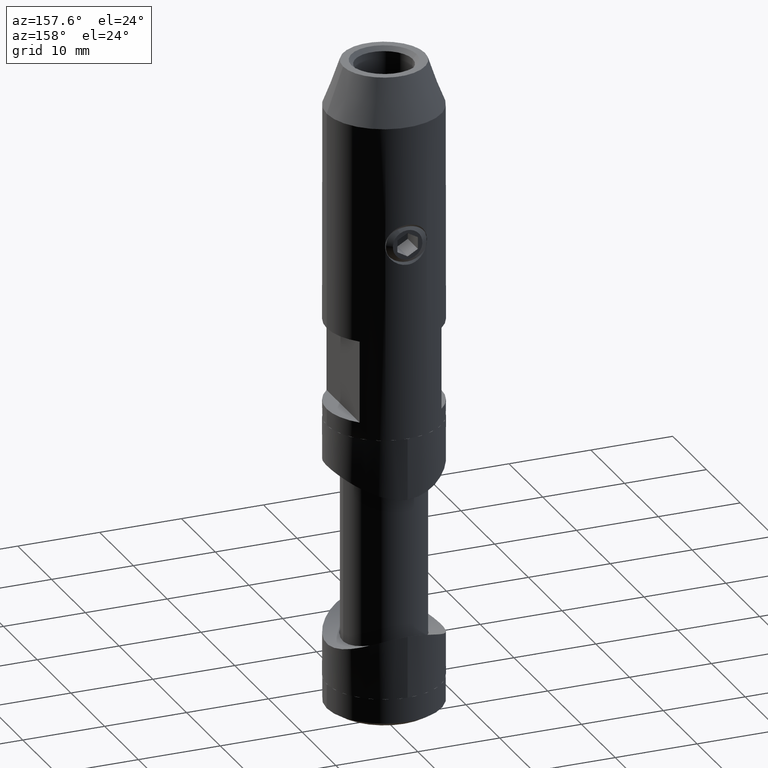
[diagram: clean part render]
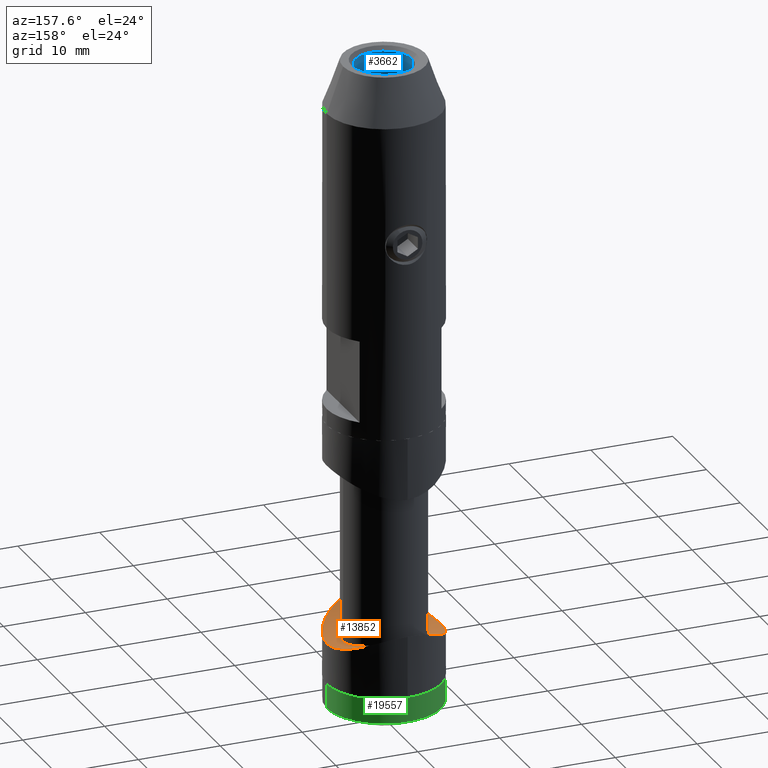
[diagram: same view with three faces highlighted in distinct colors, each labeled with its STEP entity id]
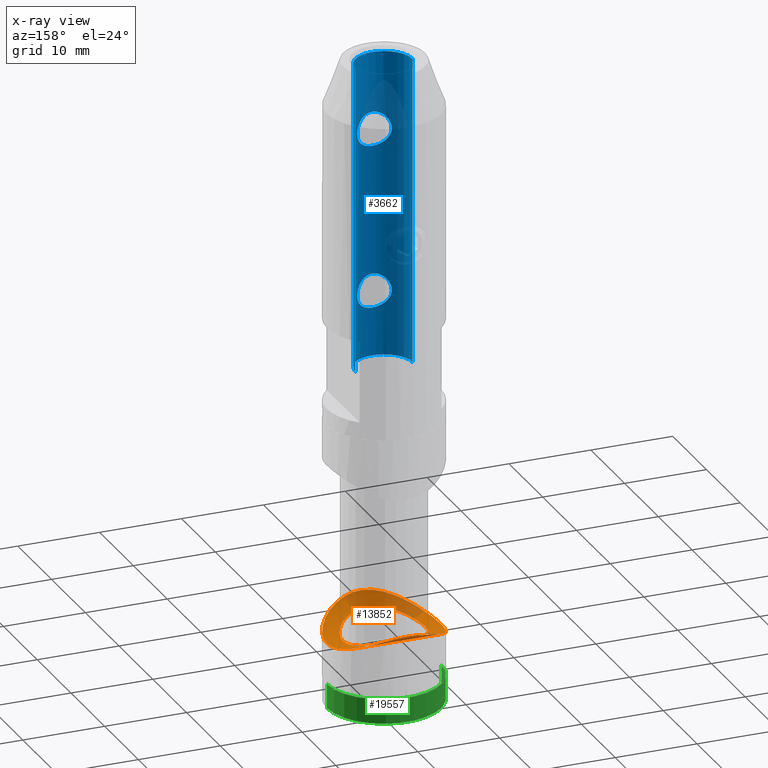
[diagram: x-ray of the same camera — body ghosted, the three highlighted faces saturated]
A machine part, auxiliary view with three faces highlighted in distinct colors.
The next image is the same camera in x-ray (body ghosted, the three faces saturated) — at least one of them is partly hidden behind the body in this view.
Their STEP definitions:

[orange] entity #13852 — the highlighted cylindrical surface (partial cylindrical patch) has radius 11 mm, axis along (-1, 0, 0).
#58 = CARTESIAN_POINT ( 'NONE',  ( 0.8347342870917892066, 4.983315160867518578, 5.030493681191865463 ) ) ;
#132 = CARTESIAN_POINT ( 'NONE',  ( -1.798898134684533190, 4.721600766779466163, 5.146994634045535477 ) ) ;
#161 = CARTESIAN_POINT ( 'NONE',  ( 4.302957743383328371, -5.539326587374739042, 5.868803495781969026 ) ) ;
#223 = CARTESIAN_POINT ( 'NONE',  ( -7.000000000000284217, -0.4763624378593324660, 7.514718625761431348 ) ) ;
#288 = VERTEX_POINT ( 'NONE', #7388 ) ;
#433 = CARTESIAN_POINT ( 'NONE',  ( -3.738745410604529695, -5.922185817696358434, 5.652949233903943771 ) ) ;
#597 = CARTESIAN_POINT ( 'NONE',  ( 5.114907288801578744, 4.784046224947594794, 6.259948611788000328 ) ) ;
#649 = CYLINDRICAL_SURFACE ( 'NONE', #12547, 11.00000000000000000 ) ;
#664 = CARTESIAN_POINT ( 'NONE',  ( 4.531019783210669338, -2.254405599126572124, 5.975539323838369832 ) ) ;
#727 = CARTESIAN_POINT ( 'NONE',  ( 2.546797807824404902, -4.372993003360093667, 5.295211678164507774 ) ) ;
#730 = CARTESIAN_POINT ( 'NONE',  ( 2.301034675769405347, 6.626992172020193195, 5.234467967776039288 ) ) ;
#799 = CARTESIAN_POINT ( 'NONE',  ( 6.763632749686718348, 1.862951637489550949, 7.324308792532637113 ) ) ;
#1072 = CARTESIAN_POINT ( 'NONE',  ( -5.050000000000141931, -9.244463733058732095E-30, 6.227717769118616964 ) ) ;
#1191 = CARTESIAN_POINT ( 'NONE',  ( -4.885038734902628299, 1.322631328272658724, 6.143946356408126697 ) ) ;
#1445 = CARTESIAN_POINT ( 'NONE',  ( 3.346012908547002063, 3.796378999838738277, 5.518435895400592983 ) ) ;
#1721 = CARTESIAN_POINT ( 'NONE',  ( 6.812274545733001396, -1.627136497544569682, 7.363074465144524794 ) ) ;
#1794 = CARTESIAN_POINT ( 'NONE',  ( -7.000000000000284217, -9.244463733058732095E-30, 7.514718625761432236 ) ) ;
#1809 = CARTESIAN_POINT ( 'NONE',  ( -6.765964257790813896, 1.854074947819542851, 7.326140929028419180 ) ) ;
#1858 = CARTESIAN_POINT ( 'NONE',  ( 6.999999999999996447, -0.4740943276049978117, 7.514718625761454440 ) ) ;
#1872 = CARTESIAN_POINT ( 'NONE',  ( -7.000000000000284217, -9.244463733058732095E-30, 7.514718625761432236 ) ) ;
#2149 = CARTESIAN_POINT ( 'NONE',  ( 7.000000000000004441, -5.723021685032325300E-14, 7.514718625761387827 ) ) ;
#2218 = CARTESIAN_POINT ( 'NONE',  ( -1.325247053648522133, -4.884574948943930295, 5.075116484067814682 ) ) ;
#2221 = CARTESIAN_POINT ( 'NONE',  ( 1.849171311116351024, 6.767508011685089642, 5.146708090684417591 ) ) ;
#2297 = CARTESIAN_POINT ( 'NONE',  ( -0.4907799386418351673, 6.998898104596894321, 5.000701205087874079 ) ) ;
#2372 = CARTESIAN_POINT ( 'NONE',  ( -0.3309924527476572620, -5.050159809286224544, 4.999926633016219313 ) ) ;
#2374 = CARTESIAN_POINT ( 'NONE',  ( 7.000000000000002665, 0.2377497690112485296, 7.514718625761418025 ) ) ;
#2701 = VERTEX_POINT ( 'NONE', #3272 ) ;
#3074 = CARTESIAN_POINT ( 'NONE',  ( 5.049999999999999822, 6.183411203961693989E-16, 6.227717769118619628 ) ) ;
#3133 = CARTESIAN_POINT ( 'NONE',  ( 4.377306081229053625, 2.539582479675894788, 5.906521603887060046 ) ) ;
#3151 = EDGE_LOOP ( 'NONE', ( #5191, #11734 ) ) ;
#3190 = CARTESIAN_POINT ( 'NONE',  ( 1.644014135615404992, 4.786504532583993665, 5.119070170647719742 ) ) ;
#3272 = CARTESIAN_POINT ( 'NONE',  ( -5.050000000000141931, -9.244463733058732095E-30, 6.227717769118616964 ) ) ;
#3296 = CARTESIAN_POINT ( 'NONE',  ( -6.052226204783508479, -3.545188428060873420, 6.809991856603720528 ) ) ;
#3354 = CARTESIAN_POINT ( 'NONE',  ( -0.9295944337245134470, -6.941983683191890186, 5.036843005532409379 ) ) ;
#3418 = CARTESIAN_POINT ( 'NONE',  ( 5.277947180286361117, -4.619883079932325387, 6.342453332013024081 ) ) ;
#3489 = CARTESIAN_POINT ( 'NONE',  ( 5.558983717407167902, -4.277416846365695413, 6.503500197077546119 ) ) ;
#3710 = CARTESIAN_POINT ( 'NONE',  ( 4.010594253488467764, -3.086069846067138300, 5.755306121692768784 ) ) ;
#3712 = CARTESIAN_POINT ( 'NONE',  ( 4.300644525004608809, 5.541751699449870117, 5.867539799732574224 ) ) ;
#3849 = CARTESIAN_POINT ( 'NONE',  ( 1.644815588714458876, -4.785966290671257006, 5.119291178394015596 ) ) ;
#3851 = CARTESIAN_POINT ( 'NONE',  ( 6.904112164166043897, 1.177949242828133514, 7.436307939935931977 ) ) ;
#3903 = CARTESIAN_POINT ( 'NONE',  ( 7.000000000000004441, -5.723021685032325300E-14, 7.514718625761387827 ) ) ;
#3995 = CARTESIAN_POINT ( 'NONE',  ( -5.015336873282027597, -0.6775477329682444427, 6.209604506756885911 ) ) ;
#4034 = B_SPLINE_CURVE_WITH_KNOTS ( 'NONE', 3,
 ( #11201, #1858, #12859, #1721, #15865, #8144, #12789, #11144, #6490, #3489, #3418, #14345, #161, #8002, #15928, #4774, #17489, #14412, #17354, #6619, #5033, #3354, #9580, #17292, #12657, #14155, #11349, #17552, #433, #8225, #12597, #15736, #6356, #7941, #18855, #3296, #14216, #4834, #6420, #18925, #223, #1794 ),
 .UNSPECIFIED., .F., .F.,
 ( 4, 2, 2, 2, 2, 2, 2, 2, 2, 2, 2, 2, 2, 2, 2, 2, 2, 2, 2, 2, 4 ),
 ( 0.02253123587157023974, 0.02393527655227489434, 0.02463729689262722511, 0.02533931723297955241, 0.02674335791368420701, 0.02814739859438886507, 0.02955143927509352314, 0.03095547995579818121, 0.03235952063650283927, 0.03376356131720749387, 0.03446558165755982117, 0.03516760199791215541, 0.03657164267861681001, 0.03727366301896913731, 0.03797568335932146460, 0.03867770369967379190, 0.03937972404002612614, 0.04078376472073078074, 0.04218780540143544922, 0.04359184608214010381, 0.04499588676284476535 ),
 .UNSPECIFIED. ) ;
#4060 = CARTESIAN_POINT ( 'NONE',  ( -4.523421857255739198, -2.251258128524327606, 5.972741108334475690 ) ) ;
#4556 = CARTESIAN_POINT ( 'NONE',  ( 0.6694115758952835504, 5.008267232178823747, 5.019106629645234463 ) ) ;
#4749 = CARTESIAN_POINT ( 'NONE',  ( 5.017264493785554613, 0.6656149110418781989, 6.210587786190290061 ) ) ;
#4774 = CARTESIAN_POINT ( 'NONE',  ( 2.313820538208837707, -6.622735270713296707, 5.237110732547023417 ) ) ;
#4834 = CARTESIAN_POINT ( 'NONE',  ( -6.624192190383780598, -2.307918029003276583, 7.215481015150577271 ) ) ;
#4916 = CARTESIAN_POINT ( 'NONE',  ( -6.273426768740709925, 3.138526888149929306, 6.961660900673267705 ) ) ;
#5033 = CARTESIAN_POINT ( 'NONE',  ( -0.4616743109381308829, -6.988715196624761816, 5.007192627578020527 ) ) ;
#5112 = CARTESIAN_POINT ( 'NONE',  ( -6.951654864948971557, 0.9435893643243959961, 7.474239144838221272 ) ) ;
#5191 = ORIENTED_EDGE ( 'NONE', *, *, #6446, .T. ) ;
#5194 = CARTESIAN_POINT ( 'NONE',  ( 0.2214254515694320802, 7.000523600136869362, 4.999666800438288483 ) ) ;
#5261 = CARTESIAN_POINT ( 'NONE',  ( 0.6698125511099018992, -5.008192777544311802, 5.019140554059224435 ) ) ;
#5263 = CARTESIAN_POINT ( 'NONE',  ( 1.161837405269506185, 6.906864965397544687, 5.059091500456442958 ) ) ;
#5334 = CARTESIAN_POINT ( 'NONE',  ( -2.546378848194947420, -4.373241396607924436, 5.295110327002082506 ) ) ;
#5407 = CARTESIAN_POINT ( 'NONE',  ( 6.987680589103055340, 0.4774160419172169822, 7.504514137652255279 ) ) ;
#5486 = CARTESIAN_POINT ( 'NONE',  ( -4.649793783628306976, 5.251334342229204033, 6.024906302003863345 ) ) ;
#5917 = CARTESIAN_POINT ( 'NONE',  ( -7.000000000000284217, -9.244463733058732095E-30, 7.514718625761432236 ) ) ;
#5931 = CARTESIAN_POINT ( 'NONE',  ( -5.050000000000141931, -9.244463733058732095E-30, 6.227717769118616964 ) ) ;
#6059 = CARTESIAN_POINT ( 'NONE',  ( -1.324074876012344193, 4.876188760810965306, 5.078792124039382294 ) ) ;
#6109 = B_SPLINE_CURVE_WITH_KNOTS ( 'NONE', 3,
 ( #1872, #9592, #5112, #1809, #14302, #4916, #12807, #6997, #10083, #5486, #19440, #8371, #6926, #11654, #16231, #19294, #2297, #5194, #8514, #14805, #5263, #2221, #730, #13306, #13233, #3712, #16150, #597, #17712, #9941, #14589, #13158, #6781, #11506, #799, #3851, #13007, #5407, #2374, #2149 ),
 .UNSPECIFIED., .F., .F.,
 ( 4, 2, 2, 2, 2, 2, 2, 2, 2, 2, 2, 2, 2, 2, 2, 2, 2, 2, 2, 4 ),
 ( 0.000000000000000000, 0.001408202241973139767, 0.002816404483946279534, 0.004224606725919418868, 0.005632808967892559068, 0.007041011209865698402, 0.008449213451838837735, 0.009857415693811977936, 0.01126561793578511814, 0.01196971905677168650, 0.01267382017775825660, 0.01408202241973139680, 0.01549022466170453700, 0.01689842690367767547, 0.01760252802466424557, 0.01830662914565081567, 0.01971483138762395587, 0.02112303362959709954, 0.02182713475058366964, 0.02253123587157023974 ),
 .UNSPECIFIED. ) ;
#6130 = CARTESIAN_POINT ( 'NONE',  ( 2.547008003639354090, 4.372918478376748297, 5.295247978829205948 ) ) ;
#6356 = CARTESIAN_POINT ( 'NONE',  ( -4.801024735240244645, -5.099024646223536017, 6.101446781323081936 ) ) ;
#6420 = CARTESIAN_POINT ( 'NONE',  ( -6.761740977554861587, -1.870689667826440639, 7.322816668642889049 ) ) ;
#6446 = EDGE_CURVE ( 'NONE', #2701, #288, #10794, .T. ) ;
#6490 = CARTESIAN_POINT ( 'NONE',  ( 6.056531478097463506, -3.537940262749728948, 6.812822254243739550 ) ) ;
#6619 = CARTESIAN_POINT ( 'NONE',  ( -0.2271689663048469532, -7.000260248264503993, 4.999834387531060464 ) ) ;
#6781 = CARTESIAN_POINT ( 'NONE',  ( 6.269507857867425926, 3.146234964335936635, 6.958936000710156833 ) ) ;
#6926 = CARTESIAN_POINT ( 'NONE',  ( -3.163060452404388823, 6.261350458648621498, 5.455611984914543022 ) ) ;
#6997 = CARTESIAN_POINT ( 'NONE',  ( -5.557449205181134388, 4.279761006885696162, 6.502534725485556777 ) ) ;
#7057 = CARTESIAN_POINT ( 'NONE',  ( -3.088759460282020086, -4.008597079784670392, 5.438831828528124746 ) ) ;
#7388 = CARTESIAN_POINT ( 'NONE',  ( 5.049999999999999822, 6.183411203961693989E-16, 6.227717769118619628 ) ) ;
#7517 = CARTESIAN_POINT ( 'NONE',  ( -4.375843760810009364, 2.542091483315129352, 5.905885472017380344 ) ) ;
#7649 = CARTESIAN_POINT ( 'NONE',  ( 1.324288223313524693, 4.884629565474531532, 5.075089861455793105 ) ) ;
#7845 = CARTESIAN_POINT ( 'NONE',  ( -1.643346076912448162, 4.778054497370530562, 5.122253476995908272 ) ) ;
#7911 = CARTESIAN_POINT ( 'NONE',  ( -0.3381648408169122266, 5.049801814264135658, 5.000090985257237719 ) ) ;
#7941 = CARTESIAN_POINT ( 'NONE',  ( -5.273991696881241253, -4.624345898174418323, 6.340300785909568582 ) ) ;
#7977 = DIRECTION ( 'NONE',  ( -1.183291357831474618E-30, 1.000000000000000000, 3.004563560701657287E-35 ) ) ;
#8002 = CARTESIAN_POINT ( 'NONE',  ( 3.563861619915402290, -6.041396753817215526, 5.585804001147470998 ) ) ;
#8144 = CARTESIAN_POINT ( 'NONE',  ( 6.617060154661993820, -2.295148674237948327, 7.212399313888086638 ) ) ;
#8225 = CARTESIAN_POINT ( 'NONE',  ( -4.110904691520238963, -5.670182071316340000, 5.795092385586124273 ) ) ;
#8359 = EDGE_CURVE ( 'NONE', #8442, #18681, #4034, .T. ) ;
#8367 = CARTESIAN_POINT ( 'NONE',  ( 5.049999999999999822, -0.3332332835288888129, 6.227717769118636504 ) ) ;
#8371 = CARTESIAN_POINT ( 'NONE',  ( -3.558049577198596491, 6.044979889134974194, 5.583740064937725123 ) ) ;
#8442 = VERTEX_POINT ( 'NONE', #3903 ) ;
#8514 = CARTESIAN_POINT ( 'NONE',  ( 0.4606742574264122703, 6.988804917288322649, 5.007135663298367234 ) ) ;
#8656 = CARTESIAN_POINT ( 'NONE',  ( -3.804640107169164231, -3.336934319767951074, 5.675999726451558480 ) ) ;
#8726 = CARTESIAN_POINT ( 'NONE',  ( -4.786646975128507009, -1.643126827578287319, 6.095059610140738826 ) ) ;
#8932 = B_SPLINE_CURVE_WITH_KNOTS ( 'NONE', 3,
 ( #11712, #8367, #13003, #16145, #13229, #664, #11576, #3710, #17919, #14867, #19291, #727, #14656, #3849, #10009, #19504, #5261, #14725, #11652, #2372, #16226, #2218, #16443, #13156, #5334, #7057, #17991, #8656, #9867, #19654, #16707, #4060, #10422, #8726, #18195, #3995, #14933, #1072 ),
 .UNSPECIFIED., .F., .F.,
 ( 4, 2, 2, 2, 2, 2, 2, 2, 2, 2, 2, 2, 2, 2, 2, 2, 2, 2, 4 ),
 ( 0.01601497281934123607, 0.01701466347767280687, 0.01801435413600437768, 0.01901404479433595196, 0.02001373545266751930, 0.02101342611099909358, 0.02201311676933066439, 0.02301280742766223519, 0.02351265275682802580, 0.02401249808599380947, 0.02501218874432538028, 0.02601187940265695109, 0.02701157006098852537, 0.02801126071932009617, 0.02901095137765166698, 0.02951079670681745412, 0.03001064203598324126, 0.03101033269431481207, 0.03201002335264638288 ),
 .UNSPECIFIED. ) ;
#9032 = CARTESIAN_POINT ( 'NONE',  ( -5.050000000000141043, 0.3388950582306048398, 6.227717769118617852 ) ) ;
#9089 = CARTESIAN_POINT ( 'NONE',  ( -4.009961088409433216, 3.087142659159995084, 5.755032025794676542 ) ) ;
#9296 = CARTESIAN_POINT ( 'NONE',  ( -1.160357236858920338, 4.917717042105977931, 5.060138163516199938 ) ) ;
#9487 = CARTESIAN_POINT ( 'NONE',  ( 3.090260536766618049, 4.007487442779405384, 5.439258765585370803 ) ) ;
#9580 = CARTESIAN_POINT ( 'NONE',  ( -1.164191950391297414, -6.906543958800002159, 5.059295683047658088 ) ) ;
#9592 = CARTESIAN_POINT ( 'NONE',  ( -7.000000000000284217, 0.4777743709310715570, 7.514718625761435788 ) ) ;
#9687 = CARTESIAN_POINT ( 'NONE',  ( 2.619264724366640760E-28, -7.000000000000284217, 16.00000000000000000 ) ) ;
#9867 = CARTESIAN_POINT ( 'NONE',  ( -4.011150246812941411, -3.085277370897202331, 5.755531755659331949 ) ) ;
#9941 = CARTESIAN_POINT ( 'NONE',  ( 5.548354116399063507, 4.273845609058724015, 6.500402019132683229 ) ) ;
#10009 = CARTESIAN_POINT ( 'NONE',  ( 1.329451371967022011, -4.883332328652869592, 5.075672463676657031 ) ) ;
#10083 = CARTESIAN_POINT ( 'NONE',  ( -5.275968328933357654, 4.621823535817484618, 6.341468294499327918 ) ) ;
#10120 = ORIENTED_EDGE ( 'NONE', *, *, #8359, .F. ) ;
#10422 = CARTESIAN_POINT ( 'NONE',  ( -4.595284630925085878, -2.100761271488811310, 6.005585684564774596 ) ) ;
#10781 = CARTESIAN_POINT ( 'NONE',  ( 4.011643289364756448, 3.084964476089852248, 5.755692664681569148 ) ) ;
#10794 = B_SPLINE_CURVE_WITH_KNOTS ( 'NONE', 3,
 ( #5931, #9032, #19906, #1191, #15314, #16876, #7517, #9089, #20033, #15581, #17137, #12568, #15439, #132, #7845, #6059, #9296, #17204, #7911, #14074, #12375, #4556, #58, #7649, #3190, #17072, #6130, #9487, #1445, #10987, #10781, #3133, #18637, #18826, #14129, #4749, #11055, #3074 ),
 .UNSPECIFIED., .F., .F.,
 ( 4, 2, 2, 2, 2, 2, 2, 2, 2, 2, 2, 2, 2, 2, 2, 2, 2, 2, 4 ),
 ( 0.000000000000000000, 0.001000935801208827905, 0.002001871602417655809, 0.003002807403626483497, 0.004003743204835311618, 0.005004679006044138873, 0.006005614807252965259, 0.006506082707857379320, 0.007006550608461791646, 0.008007486409670618033, 0.008507954310275031226, 0.009008422210879444419, 0.01000935801208827428, 0.01101029381329710240, 0.01201122961450592878, 0.01301216541571475864, 0.01401310121692358503, 0.01501403701813241315, 0.01601497281934123607 ),
 .UNSPECIFIED. ) ;
#10987 = CARTESIAN_POINT ( 'NONE',  ( 3.805383662286298652, 3.335768438813500048, 5.676335745202010230 ) ) ;
#11055 = CARTESIAN_POINT ( 'NONE',  ( 5.050000000000001599, 0.3336483349710467339, 6.227717769118606306 ) ) ;
#11144 = CARTESIAN_POINT ( 'NONE',  ( 6.273866739672759429, -3.137677219901788828, 6.961965779511344543 ) ) ;
#11201 = CARTESIAN_POINT ( 'NONE',  ( 7.000000000000004441, -5.723021685032325300E-14, 7.514718625761387827 ) ) ;
#11349 = CARTESIAN_POINT ( 'NONE',  ( -3.144431679818662229, -6.258171158556381286, 5.456902873018733224 ) ) ;
#11506 = CARTESIAN_POINT ( 'NONE',  ( 6.622956682125623828, 2.311269784633307012, 7.214556823597193969 ) ) ;
#11576 = CARTESIAN_POINT ( 'NONE',  ( 4.373964812536534019, -2.545019681576510706, 5.905097784275818995 ) ) ;
#11652 = CARTESIAN_POINT ( 'NONE',  ( 0.1691402037588732310, -5.049919218883492711, 5.000037085872841125 ) ) ;
#11654 = CARTESIAN_POINT ( 'NONE',  ( -2.320867787877572308, 6.619896804541308022, 5.238836366385117849 ) ) ;
#11712 = CARTESIAN_POINT ( 'NONE',  ( 5.049999999999999822, 6.183411203961693989E-16, 6.227717769118619628 ) ) ;
#11734 = ORIENTED_EDGE ( 'NONE', *, *, #18167, .T. ) ;
#11823 = ORIENTED_EDGE ( 'NONE', *, *, #17201, .F. ) ;
#12325 = EDGE_LOOP ( 'NONE', ( #11823, #10120 ) ) ;
#12375 = CARTESIAN_POINT ( 'NONE',  ( 0.3343144970693806561, 5.041734457893236154, 5.003802253228930574 ) ) ;
#12547 = AXIS2_PLACEMENT_3D ( 'NONE', #9687, #7977, #18896 ) ;
#12568 = CARTESIAN_POINT ( 'NONE',  ( -2.542093021732978020, 4.375911011357829672, 5.294036203197613588 ) ) ;
#12597 = CARTESIAN_POINT ( 'NONE',  ( -4.289978481396708787, -5.535894384654330480, 5.869272368477476576 ) ) ;
#12607 = FACE_OUTER_BOUND ( 'NONE', #12325, .T. ) ;
#12657 = CARTESIAN_POINT ( 'NONE',  ( -2.300155943045375739, -6.627297524066506185, 5.234279387161443253 ) ) ;
#12789 = CARTESIAN_POINT ( 'NONE',  ( 6.538584528614772573, -2.509684823444015223, 7.153600790624825123 ) ) ;
#12807 = CARTESIAN_POINT ( 'NONE',  ( -6.058683391609648972, 3.534678415989362055, 6.814171574157921185 ) ) ;
#12859 = CARTESIAN_POINT ( 'NONE',  ( 6.952353740326868703, -0.9398979421706252779, 7.474799345840276388 ) ) ;
#13003 = CARTESIAN_POINT ( 'NONE',  ( 5.016145469534236234, -0.6723523386354358644, 6.210017951011605142 ) ) ;
#13007 = CARTESIAN_POINT ( 'NONE',  ( 6.939710044015401813, 0.9465889273593277586, 7.465283568994790286 ) ) ;
#13156 = CARTESIAN_POINT ( 'NONE',  ( -2.252167218506140323, -4.532059358613503619, 5.228564578687819875 ) ) ;
#13158 = CARTESIAN_POINT ( 'NONE',  ( 6.056392610917076702, 3.538246314894518463, 6.812717904675321456 ) ) ;
#13229 = CARTESIAN_POINT ( 'NONE',  ( 4.786933310066603831, -1.642484205767125616, 6.095191995362422510 ) ) ;
#13233 = CARTESIAN_POINT ( 'NONE',  ( 3.547949583967521470, 6.051331174083297348, 5.580098523014664913 ) ) ;
#13306 = CARTESIAN_POINT ( 'NONE',  ( 3.148837931513962740, 6.268700464065021016, 5.451243665863186649 ) ) ;
#13852 = ADVANCED_FACE ( 'NONE', ( #16778, #12607 ), #649, .F. ) ;
#14074 = CARTESIAN_POINT ( 'NONE',  ( 0.1646233988540177495, 5.050097780466965780, 4.999955109882697535 ) ) ;
#14129 = CARTESIAN_POINT ( 'NONE',  ( 4.884397924061446794, 1.326138427852358914, 6.143621790337340016 ) ) ;
#14155 = CARTESIAN_POINT ( 'NONE',  ( -2.936049864269827836, -6.358660130344079953, 5.396817665741710179 ) ) ;
#14216 = CARTESIAN_POINT ( 'NONE',  ( -6.270293628163780220, -3.144809313829456610, 6.959473810284622530 ) ) ;
#14302 = CARTESIAN_POINT ( 'NONE',  ( -6.626362017835187856, 2.301643078103948525, 7.217131248517889119 ) ) ;
#14345 = CARTESIAN_POINT ( 'NONE',  ( 4.647052587015751079, -5.254041145979729599, 6.023535880095139738 ) ) ;
#14412 = CARTESIAN_POINT ( 'NONE',  ( 0.9561356181228538587, -6.950147116260164459, 5.031903391544506832 ) ) ;
#14589 = CARTESIAN_POINT ( 'NONE',  ( 5.682708424258758662, 4.093481962274591268, 6.580428040297160663 ) ) ;
#14656 = CARTESIAN_POINT ( 'NONE',  ( 2.252283018997188524, -4.531899475788997655, 5.228627571948439190 ) ) ;
#14725 = CARTESIAN_POINT ( 'NONE',  ( 0.3359583006180752451, -5.041604483784619006, 5.003861812191657599 ) ) ;
#14805 = CARTESIAN_POINT ( 'NONE',  ( 0.9299979417929800096, 6.941953527043351890, 5.036862177057030543 ) ) ;
#14867 = CARTESIAN_POINT ( 'NONE',  ( 3.339582095800435635, -3.802119749626663658, 5.516360912281424334 ) ) ;
#14933 = CARTESIAN_POINT ( 'NONE',  ( -5.050000000000141931, -0.3384734799761519586, 6.227717769118616076 ) ) ;
#15314 = CARTESIAN_POINT ( 'NONE',  ( -4.785809054425989473, 1.645417138503377563, 6.094657659906695280 ) ) ;
#15439 = CARTESIAN_POINT ( 'NONE',  ( -2.253997665356861191, 4.531025019116708741, 5.228995663625569890 ) ) ;
#15581 = CARTESIAN_POINT ( 'NONE',  ( -3.341941475565662678, 3.799909755860048755, 5.517142028585781510 ) ) ;
#15736 = CARTESIAN_POINT ( 'NONE',  ( -4.634687890405571942, -5.250686637709595317, 6.022263489474741327 ) ) ;
#15865 = CARTESIAN_POINT ( 'NONE',  ( 6.753785770811216338, -1.854607853229240932, 7.317040327690201629 ) ) ;
#15928 = CARTESIAN_POINT ( 'NONE',  ( 3.165976961786824972, -6.260269788629083898, 5.456274816559064433 ) ) ;
#16145 = CARTESIAN_POINT ( 'NONE',  ( 4.884124368318618181, -1.326311499457652365, 6.143489814044753139 ) ) ;
#16150 = CARTESIAN_POINT ( 'NONE',  ( 4.644332166944091789, 5.256203776964100349, 6.022340495122413095 ) ) ;
#16226 = CARTESIAN_POINT ( 'NONE',  ( -0.6665721100508192887, -5.017074227790246255, 5.015235951009542781 ) ) ;
#16231 = CARTESIAN_POINT ( 'NONE',  ( -1.868620718978700967, 6.762048655295059163, 5.150117211037595233 ) ) ;
#16443 = CARTESIAN_POINT ( 'NONE',  ( -1.642026639668769938, -4.787020756663585175, 5.118831554918820359 ) ) ;
#16707 = CARTESIAN_POINT ( 'NONE',  ( -4.367480228621802851, -2.540595385444810450, 5.903843175159087409 ) ) ;
#16778 = FACE_BOUND ( 'NONE', #3151, .T. ) ;
#16876 = CARTESIAN_POINT ( 'NONE',  ( -4.531026148141392262, 2.254144607154875857, 5.975551026379023689 ) ) ;
#17072 = CARTESIAN_POINT ( 'NONE',  ( 2.258347429815220853, 4.529158310856153946, 5.229796505374744164 ) ) ;
#17137 = CARTESIAN_POINT ( 'NONE',  ( -3.088587391594380449, 4.008922802318650724, 5.438725187077531054 ) ) ;
#17201 = EDGE_CURVE ( 'NONE', #18681, #8442, #6109, .T. ) ;
#17204 = CARTESIAN_POINT ( 'NONE',  ( -0.6693808591222187854, 5.016563421192095973, 5.015467559364057415 ) ) ;
#17292 = CARTESIAN_POINT ( 'NONE',  ( -1.857958556001904737, -6.765409035154463346, 5.148022972862459135 ) ) ;
#17354 = CARTESIAN_POINT ( 'NONE',  ( 0.4779855654310720681, -6.999466188930153265, 5.000339697825916474 ) ) ;
#17489 = CARTESIAN_POINT ( 'NONE',  ( 1.872241291340982938, -6.761172443067881233, 5.150665869296223498 ) ) ;
#17552 = CARTESIAN_POINT ( 'NONE',  ( -3.545662890074149143, -6.039903269820232623, 5.584980927143774032 ) ) ;
#17712 = CARTESIAN_POINT ( 'NONE',  ( 5.264305234839995684, 4.619207733526296877, 6.340099089871694460 ) ) ;
#17919 = CARTESIAN_POINT ( 'NONE',  ( 3.801011353465558962, -3.340843584473519368, 5.674700498922186753 ) ) ;
#17991 = CARTESIAN_POINT ( 'NONE',  ( -3.340264151766876743, -3.801717032598098900, 5.516541439499588861 ) ) ;
#18167 = EDGE_CURVE ( 'NONE', #288, #2701, #8932, .T. ) ;
#18195 = CARTESIAN_POINT ( 'NONE',  ( -4.883504680067818349, -1.328178046313251537, 6.143183581583119057 ) ) ;
#18637 = CARTESIAN_POINT ( 'NONE',  ( 4.533870929477297196, 2.248113447923592467, 5.976853787374134086 ) ) ;
#18681 = VERTEX_POINT ( 'NONE', #5917 ) ;
#18826 = CARTESIAN_POINT ( 'NONE',  ( 4.786500833556129209, 1.642987964125336209, 6.095008562588192014 ) ) ;
#18855 = CARTESIAN_POINT ( 'NONE',  ( -5.554878004119144563, -4.282654945670762103, 6.501104165803741175 ) ) ;
#18896 = DIRECTION ( 'NONE',  ( 3.084497176564052154E-35, 0.000000000000000000, 1.000000000000000000 ) ) ;
#18925 = CARTESIAN_POINT ( 'NONE',  ( -6.951047740780801121, -0.9505557249542421205, 7.473712008211712998 ) ) ;
#19291 = CARTESIAN_POINT ( 'NONE',  ( 3.089049369178539894, -4.008368854802810688, 5.438918327935222230 ) ) ;
#19294 = CARTESIAN_POINT ( 'NONE',  ( -0.9560197849101003120, 6.950041120657822091, 5.031967993460270350 ) ) ;
#19440 = CARTESIAN_POINT ( 'NONE',  ( -4.301019072167645341, 5.541004745955334876, 5.867901364009729726 ) ) ;
#19504 = CARTESIAN_POINT ( 'NONE',  ( 0.8377017598554725719, -4.982843029552292080, 5.030708818280036354 ) ) ;
#19654 = CARTESIAN_POINT ( 'NONE',  ( -4.283100489718981052, -2.680296790364548265, 5.867642713912912811 ) ) ;
#19906 = CARTESIAN_POINT ( 'NONE',  ( -5.016244192959842252, 0.6710076516881354758, 6.210071958208496667 ) ) ;
#20033 = CARTESIAN_POINT ( 'NONE',  ( -3.800969888286348741, 3.340735680524099305, 5.674714919999138907 ) ) ;

[blue] entity #3662 — the highlighted cylindrical surface (edge-blend (fillet) strip) has radius 3.5 mm, axis along (0, 0, 1).
#46 = VECTOR ( 'NONE', #7372, 1000.000000000000000 ) ;
#118 = VECTOR ( 'NONE', #16135, 1000.000000000000000 ) ;
#203 = CARTESIAN_POINT ( 'NONE',  ( -3.499999999999993783, 0.000000000000000000, 13.50607638888888573 ) ) ;
#249 = DIRECTION ( 'NONE',  ( 0.000000000000000000, 0.000000000000000000, -1.000000000000000000 ) ) ;
#324 = ORIENTED_EDGE ( 'NONE', *, *, #2151, .T. ) ;
#378 = CARTESIAN_POINT ( 'NONE',  ( 0.000000000000000000, 0.000000000000000000, 21.49999999999998934 ) ) ;
#393 = CARTESIAN_POINT ( 'NONE',  ( -3.499999999999996003, -3.193398914443438718E-13, 6.915310115395565838 ) ) ;
#415 = DIRECTION ( 'NONE',  ( 0.000000000000000000, 0.000000000000000000, -1.000000000000000000 ) ) ;
#438 = VECTOR ( 'NONE', #19816, 1000.000000000000000 ) ;
#470 = VECTOR ( 'NONE', #10398, 1000.000000000000000 ) ;
#502 = VERTEX_POINT ( 'NONE', #6946 ) ;
#532 = DIRECTION ( 'NONE',  ( -0.000000000000000000, -0.000000000000000000, 1.000000000000000000 ) ) ;
#595 = DIRECTION ( 'NONE',  ( 0.000000000000000000, 0.000000000000000000, -1.000000000000000000 ) ) ;
#611 = ORIENTED_EDGE ( 'NONE', *, *, #11463, .T. ) ;
#698 = CARTESIAN_POINT ( 'NONE',  ( -0.1418295606522404217, -3.499999999999993339, 14.09999999999999254 ) ) ;
#765 = CARTESIAN_POINT ( 'NONE',  ( -1.882607534078946321, -2.951244000711664928, 11.05952620324697300 ) ) ;
#803 = DIRECTION ( 'NONE',  ( 0.000000000000000000, 0.000000000000000000, -1.000000000000000000 ) ) ;
#835 = CARTESIAN_POINT ( 'NONE',  ( -3.499999999999991118, 2.789914770018850756E-16, 14.15412507797768171 ) ) ;
#847 = ORIENTED_EDGE ( 'NONE', *, *, #8331, .F. ) ;
#927 = EDGE_CURVE ( 'NONE', #12781, #5650, #13424, .T. ) ;
#933 = CARTESIAN_POINT ( 'NONE',  ( -1.817335456482831679, -2.992440681351456355, -6.939250356914769213 ) ) ;
#970 = CARTESIAN_POINT ( 'NONE',  ( 1.287055695108326736, -3.256916397413912367, 13.66481178486722214 ) ) ;
#1001 = CARTESIAN_POINT ( 'NONE',  ( -1.667185181033653762, -3.078630631754453617, -9.283948884963592718 ) ) ;
#1019 = EDGE_CURVE ( 'NONE', #17495, #8051, #19934, .T. ) ;
#1039 = CARTESIAN_POINT ( 'NONE',  ( -1.582320763407110809, -3.123679022661083327, 10.61272972105347456 ) ) ;
#1049 = EDGE_CURVE ( 'NONE', #6301, #5192, #1905, .T. ) ;
#1067 = CARTESIAN_POINT ( 'NONE',  ( -1.668037163090738462, -3.078158770327651617, -6.717210075950350578 ) ) ;
#1104 = CARTESIAN_POINT ( 'NONE',  ( -3.499999999999991118, -3.201773952709413593E-13, 2.844797294882743799 ) ) ;
#1107 = CARTESIAN_POINT ( 'NONE',  ( -3.499843480353812097, -0.03310997952021155211, 8.038652020560148159 ) ) ;
#1111 = VECTOR ( 'NONE', #4982, 1000.000000000000000 ) ;
#1133 = EDGE_LOOP ( 'NONE', ( #14025, #611 ) ) ;
#1140 = CARTESIAN_POINT ( 'NONE',  ( -2.099970348922489016, -2.800022238307359856, -7.858525582012720889 ) ) ;
#1201 = CARTESIAN_POINT ( 'NONE',  ( -0.6896979188038123709, -3.433873422289379640, -9.988327735626286952 ) ) ;
#1246 = EDGE_CURVE ( 'NONE', #17115, #2288, #2994, .T. ) ;
#1256 = CARTESIAN_POINT ( 'NONE',  ( -3.499999999999993783, 4.286263797015728213E-16, 22.00000000000000000 ) ) ;
#1259 = CARTESIAN_POINT ( 'NONE',  ( 2.029589421324954568, -2.851658645986844487, -8.556962379993635182 ) ) ;
#1273 = CARTESIAN_POINT ( 'NONE',  ( -3.499835620399603275, -0.03392094017094016839, 1.962356436965805750 ) ) ;
#1280 = EDGE_CURVE ( 'NONE', #12070, #3508, #4671, .T. ) ;
#1281 = ORIENTED_EDGE ( 'NONE', *, *, #5173, .F. ) ;
#1286 = VECTOR ( 'NONE', #18082, 1000.000000000000000 ) ;
#1330 = CARTESIAN_POINT ( 'NONE',  ( 1.881779145953068388, -2.951768669592956584, -8.942027662117578046 ) ) ;
#1395 = B_SPLINE_CURVE_WITH_KNOTS ( 'NONE', 3,
 ( #18731, #12187, #4514, #10947 ),
 .UNSPECIFIED., .F., .F.,
 ( 4, 4 ),
 ( 0.0006546114727732994971, 0.0007887590903739210083 ),
 .UNSPECIFIED. ) ;
#1420 = DIRECTION ( 'NONE',  ( 0.000000000000000000, 0.000000000000000000, -1.000000000000000000 ) ) ;
#1427 = VECTOR ( 'NONE', #1420, 1000.000000000000000 ) ;
#1456 = CARTESIAN_POINT ( 'NONE',  ( 2.593477501425149944E-16, -3.499999999999993783, -5.900000000000008349 ) ) ;
#1507 = EDGE_CURVE ( 'NONE', #15763, #15047, #8805, .T. ) ;
#1517 = CARTESIAN_POINT ( 'NONE',  ( 1.987596743133517307, -2.881577730969521856, -8.691352339276862793 ) ) ;
#1533 = VECTOR ( 'NONE', #17665, 1000.000000000000000 ) ;
#1623 = EDGE_CURVE ( 'NONE', #19840, #11319, #18620, .T. ) ;
#1656 = ORIENTED_EDGE ( 'NONE', *, *, #19462, .T. ) ;
#1684 = LINE ( 'NONE', #1256, #19017 ) ;
#1700 = VECTOR ( 'NONE', #17144, 1000.000000000000000 ) ;
#1771 = B_SPLINE_CURVE_WITH_KNOTS ( 'NONE', 3,
 ( #3008, #10860, #6325, #4616 ),
 .UNSPECIFIED., .F., .F.,
 ( 4, 4 ),
 ( 0.000000000000000000, 0.0002007467027301901383 ),
 .UNSPECIFIED. ) ;
#1795 = CARTESIAN_POINT ( 'NONE',  ( -3.499999999999993783, 0.000000000000000000, 12.11531784188033889 ) ) ;
#1797 = EDGE_CURVE ( 'NONE', #18614, #11319, #13394, .T. ) ;
#1878 = VERTEX_POINT ( 'NONE', #5433 ) ;
#1901 = CARTESIAN_POINT ( 'NONE',  ( -3.499999999999994671, 1.525294579768181533E-15, 8.254947182985215903 ) ) ;
#1905 = LINE ( 'NONE', #2974, #9721 ) ;
#1948 = EDGE_CURVE ( 'NONE', #15380, #17357, #14727, .T. ) ;
#2089 = VERTEX_POINT ( 'NONE', #6742 ) ;
#2113 = CARTESIAN_POINT ( 'NONE',  ( -3.499999999999991118, 3.674005408715526735E-16, 9.272575388113416750 ) ) ;
#2140 = VERTEX_POINT ( 'NONE', #8196 ) ;
#2151 = EDGE_CURVE ( 'NONE', #10592, #4703, #20099, .T. ) ;
#2211 = VERTEX_POINT ( 'NONE', #7497 ) ;
#2254 = CARTESIAN_POINT ( 'NONE',  ( -3.499999999999993783, 0.000000000000000000, 10.04614049145298793 ) ) ;
#2268 = VERTEX_POINT ( 'NONE', #10392 ) ;
#2288 = VERTEX_POINT ( 'NONE', #9013 ) ;
#2318 = EDGE_CURVE ( 'NONE', #17115, #2140, #13268, .T. ) ;
#2321 = CARTESIAN_POINT ( 'NONE',  ( -3.499999999999993783, -0.02229520050500024761, 3.913203781014510607 ) ) ;
#2335 = CARTESIAN_POINT ( 'NONE',  ( -1.288219792084307702, -3.256452934961553858, 10.33609306255896421 ) ) ;
#2355 = LINE ( 'NONE', #19999, #15558 ) ;
#2447 = EDGE_CURVE ( 'NONE', #11860, #2288, #4460, .T. ) ;
#2460 = CARTESIAN_POINT ( 'NONE',  ( 2.593477501425149944E-16, -3.499999999999993783, -5.900000000000008349 ) ) ;
#2465 = CARTESIAN_POINT ( 'NONE',  ( -3.499999999999993783, 4.286263797015728213E-16, 22.00000000000000000 ) ) ;
#2468 = CARTESIAN_POINT ( 'NONE',  ( -1.817137771539272251, -2.992571354851931709, 10.93884898044493958 ) ) ;
#2502 = CIRCLE ( 'NONE', #9542, 3.499999999999993783 ) ;
#2512 = VERTEX_POINT ( 'NONE', #18777 ) ;
#2526 = ORIENTED_EDGE ( 'NONE', *, *, #17741, .F. ) ;
#2538 = CARTESIAN_POINT ( 'NONE',  ( -2.099970348922489016, -2.800022238307359856, 12.14147441798727911 ) ) ;
#2575 = VERTEX_POINT ( 'NONE', #10727 ) ;
#2585 = CARTESIAN_POINT ( 'NONE',  ( -3.499999999999993783, 4.286263797015728213E-16, 21.49999999999998934 ) ) ;
#2598 = CARTESIAN_POINT ( 'NONE',  ( -3.499999999999993783, -0.02341669245690056189, 3.116315548742246477 ) ) ;
#2603 = CARTESIAN_POINT ( 'NONE',  ( 1.298947161370158643, -3.256708053304374406, 10.32843561218242101 ) ) ;
#2627 = LINE ( 'NONE', #4369, #15573 ) ;
#2630 = CARTESIAN_POINT ( 'NONE',  ( -0.9445239498167503633, -3.372690974241526529, -9.880692668057609040 ) ) ;
#2637 = B_SPLINE_CURVE_WITH_KNOTS ( 'NONE', 3,
 ( #15786, #4820, #11069, #6286 ),
 .UNSPECIFIED., .F., .F.,
 ( 4, 4 ),
 ( 0.000000000000000000, 0.0001442359660445042017 ),
 .UNSPECIFIED. ) ;
#2658 = CARTESIAN_POINT ( 'NONE',  ( 0.5619512192548437035, -3.464559311125501750, 14.04231473193054036 ) ) ;
#2659 = DIRECTION ( 'NONE',  ( 1.000000000000000000, 0.000000000000000000, 0.000000000000000000 ) ) ;
#2686 = CARTESIAN_POINT ( 'NONE',  ( -1.817137771539270252, -2.992571354851932153, -9.061151019555063968 ) ) ;
#2704 = CARTESIAN_POINT ( 'NONE',  ( -3.499835620399603275, -0.03392094017094016839, 6.053804837740382361 ) ) ;
#2743 = VECTOR ( 'NONE', #7866, 1000.000000000000000 ) ;
#2789 = CARTESIAN_POINT ( 'NONE',  ( -3.499999999999993783, 0.000000000000000000, 14.87987446581196238 ) ) ;
#2819 = EDGE_CURVE ( 'NONE', #15682, #15727, #13291, .T. ) ;
#2831 = EDGE_LOOP ( 'NONE', ( #19539, #8828, #10098, #8401, #12990, #11071, #11971, #6833, #11657, #20153, #9339, #2526, #15615, #6431, #12030, #5988, #17567, #3661, #11067, #8406, #17191, #20194, #13560, #17959, #13256, #4516, #19706, #12323, #19623, #5925, #8770, #847, #11405, #19514, #1656, #7570, #9467, #20131, #15629, #12676, #3749, #324, #7173, #13936, #1281, #14064, #14613, #12557, #9157, #8659, #9152, #4461, #12701, #11779, #14555, #3286, #15574, #14239, #12483, #13345 ) ) ;
#2914 = CARTESIAN_POINT ( 'NONE',  ( 0.9449659004468912160, -3.372577581802237212, 13.88049171927556635 ) ) ;
#2925 = EDGE_CURVE ( 'NONE', #15022, #13793, #20205, .T. ) ;
#2974 = CARTESIAN_POINT ( 'NONE',  ( -3.499999999999993783, 4.286263797015728213E-16, 22.00000000000000000 ) ) ;
#2975 = LINE ( 'NONE', #9444, #5902 ) ;
#2994 = LINE ( 'NONE', #8777, #46 ) ;
#3008 = CARTESIAN_POINT ( 'NONE',  ( -3.499835620399603275, -0.03392094017094016839, 6.053804837740382361 ) ) ;
#3009 = CARTESIAN_POINT ( 'NONE',  ( -3.499964154584513043, -0.01587733694361614240, 16.94125931350566816 ) ) ;
#3031 = DIRECTION ( 'NONE',  ( -0.000000000000000000, -0.000000000000000000, 1.000000000000000000 ) ) ;
#3056 = CARTESIAN_POINT ( 'NONE',  ( -3.499999999999993783, 0.000000000000000000, 4.957999465811961493 ) ) ;
#3080 = CARTESIAN_POINT ( 'NONE',  ( 0.9449659004468909940, -3.372577581802237656, -6.119508280724436311 ) ) ;
#3134 = CARTESIAN_POINT ( 'NONE',  ( -3.499999999999993783, 0.000000000000000000, 17.84795673076922640 ) ) ;
#3227 = EDGE_CURVE ( 'NONE', #13701, #14942, #14474, .T. ) ;
#3286 = ORIENTED_EDGE ( 'NONE', *, *, #1049, .T. ) ;
#3399 = CARTESIAN_POINT ( 'NONE',  ( -3.499999999999993783, 0.000000000000000000, 16.20279113247863378 ) ) ;
#3409 = LINE ( 'NONE', #12766, #13944 ) ;
#3437 = VERTEX_POINT ( 'NONE', #3399 ) ;
#3498 = LINE ( 'NONE', #12200, #17183 ) ;
#3508 = VERTEX_POINT ( 'NONE', #19327 ) ;
#3521 = VECTOR ( 'NONE', #20067, 1000.000000000000000 ) ;
#3530 = CARTESIAN_POINT ( 'NONE',  ( 1.071157516294505285, -3.342239898289974143, -9.827112237361721014 ) ) ;
#3568 = CARTESIAN_POINT ( 'NONE',  ( -3.499835620399603275, -0.03392094017094016839, 9.111989600026706881 ) ) ;
#3629 = CARTESIAN_POINT ( 'NONE',  ( 2.593477501425149944E-16, -3.499999999999993783, -5.900000000000008349 ) ) ;
#3661 = ORIENTED_EDGE ( 'NONE', *, *, #14612, .F. ) ;
#3662 = ADVANCED_FACE ( 'NONE', ( #5154, #12294, #8871 ), #9349, .F. ) ;
#3703 = VERTEX_POINT ( 'NONE', #3056 ) ;
#3707 = CARTESIAN_POINT ( 'NONE',  ( -3.499948137901016665, -0.01990114236914094017, 2.074670091955723272 ) ) ;
#3738 = VECTOR ( 'NONE', #249, 1000.000000000000000 ) ;
#3749 = ORIENTED_EDGE ( 'NONE', *, *, #14478, .F. ) ;
#3772 = CARTESIAN_POINT ( 'NONE',  ( -3.499964288186311112, -0.01584976690593334694, 18.61344123504453307 ) ) ;
#3825 = VERTEX_POINT ( 'NONE', #10909 ) ;
#3836 = CARTESIAN_POINT ( 'NONE',  ( -3.499999999999993783, -0.01194329454691698406, 18.66117802177338802 ) ) ;
#3931 = DIRECTION ( 'NONE',  ( 0.000000000000000000, 0.000000000000000000, -1.000000000000000000 ) ) ;
#3946 = CARTESIAN_POINT ( 'NONE',  ( -3.499835620399603275, -0.03392094017094016839, 8.094361394898502482 ) ) ;
#3986 = CARTESIAN_POINT ( 'NONE',  ( -1.288219792084307480, -3.256452934961555634, -9.663906937441041123 ) ) ;
#4027 = CARTESIAN_POINT ( 'NONE',  ( 2.085408063579636373, -2.811096487270176247, 11.71625095552695939 ) ) ;
#4032 = CARTESIAN_POINT ( 'NONE',  ( -2.100059163354851322, -2.799955627485383403, 11.71837361699702917 ) ) ;
#4044 = CARTESIAN_POINT ( 'NONE',  ( -3.499999999999993783, 0.000000000000000000, 14.76115117521367104 ) ) ;
#4114 = CARTESIAN_POINT ( 'NONE',  ( -3.499999999999993783, 0.000000000000000000, 16.47415865384615685 ) ) ;
#4144 = CARTESIAN_POINT ( 'NONE',  ( 1.581845189588338529, -3.123878769142377276, 10.61233519759305466 ) ) ;
#4150 = CARTESIAN_POINT ( 'NONE',  ( -0.5579153213457094251, -3.457976455864944398, 9.970687739291879126 ) ) ;
#4173 = CARTESIAN_POINT ( 'NONE',  ( 0.000000000000000000, -3.499999999999993783, -10.09999999999999432 ) ) ;
#4238 = CARTESIAN_POINT ( 'NONE',  ( -0.5556947403095796600, -3.458366810164564153, -5.970023038938045978 ) ) ;
#4356 = EDGE_CURVE ( 'NONE', #6192, #3703, #2975, .T. ) ;
#4369 = CARTESIAN_POINT ( 'NONE',  ( -3.499999999999993783, 0.000000000000000000, 22.00000000000000000 ) ) ;
#4393 = CARTESIAN_POINT ( 'NONE',  ( -3.499835620399603275, -0.03392094017094016839, 9.111989600026706881 ) ) ;
#4414 = EDGE_CURVE ( 'NONE', #2140, #5441, #12987, .T. ) ;
#4430 = LINE ( 'NONE', #16970, #18121 ) ;
#4460 = B_SPLINE_CURVE_WITH_KNOTS ( 'NONE', 3,
 ( #1273, #15272, #20052, #12190 ),
 .UNSPECIFIED., .F., .F.,
 ( 4, 4 ),
 ( 0.000000000000000000, 0.0001721200053367875698 ),
 .UNSPECIFIED. ) ;
#4461 = ORIENTED_EDGE ( 'NONE', *, *, #19571, .F. ) ;
#4514 = CARTESIAN_POINT ( 'NONE',  ( -3.499964872827745044, -0.01572912042704845484, 17.03309416239264706 ) ) ;
#4516 = ORIENTED_EDGE ( 'NONE', *, *, #14895, .F. ) ;
#4526 = CARTESIAN_POINT ( 'NONE',  ( -3.499999999999993783, 1.166787884842798717E-15, 7.237318977857009727 ) ) ;
#4616 = CARTESIAN_POINT ( 'NONE',  ( -3.499999999999994671, 5.813822391716703952E-16, 5.857781108389465530 ) ) ;
#4638 = CARTESIAN_POINT ( 'NONE',  ( -3.499999999999992450, 1.177375796683477471E-16, 2.127320703125590295 ) ) ;
#4644 = CARTESIAN_POINT ( 'NONE',  ( -3.499999999999993783, -0.02341669245690131129, 7.186828369255071181 ) ) ;
#4671 = LINE ( 'NONE', #16567, #7376 ) ;
#4680 = EDGE_CURVE ( 'NONE', #3437, #18251, #5410, .T. ) ;
#4682 = CARTESIAN_POINT ( 'NONE',  ( 0.1425944472828577503, -3.499999999999993783, -10.09999999999999432 ) ) ;
#4703 = VERTEX_POINT ( 'NONE', #6774 ) ;
#4755 = LINE ( 'NONE', #18564, #7720 ) ;
#4763 = EDGE_CURVE ( 'NONE', #14438, #5441, #2502, .T. ) ;
#4820 = CARTESIAN_POINT ( 'NONE',  ( -3.499963657360774416, -0.01597994392587424872, 18.51734709656655653 ) ) ;
#4947 = ORIENTED_EDGE ( 'NONE', *, *, #2925, .T. ) ;
#4982 = DIRECTION ( 'NONE',  ( 0.000000000000000000, 0.000000000000000000, -1.000000000000000000 ) ) ;
#4991 = EDGE_CURVE ( 'NONE', #12781, #15763, #1395, .T. ) ;
#5057 = LINE ( 'NONE', #16672, #10497 ) ;
#5154 = FACE_BOUND ( 'NONE', #19618, .T. ) ;
#5173 = EDGE_CURVE ( 'NONE', #3437, #3508, #5388, .T. ) ;
#5192 = VERTEX_POINT ( 'NONE', #6842 ) ;
#5327 = LINE ( 'NONE', #5934, #14891 ) ;
#5338 = CARTESIAN_POINT ( 'NONE',  ( -3.499999999999993783, -0.02229520050500105599, 9.001344806655536601 ) ) ;
#5373 = CARTESIAN_POINT ( 'NONE',  ( -1.289756992078243902, -3.255885162536780619, 13.66282037723320997 ) ) ;
#5388 = LINE ( 'NONE', #6779, #14195 ) ;
#5410 = LINE ( 'NONE', #11425, #7130 ) ;
#5433 = CARTESIAN_POINT ( 'NONE',  ( -3.499999999999993783, 0.000000000000000000, 19.86625267094017033 ) ) ;
#5441 = VERTEX_POINT ( 'NONE', #8238 ) ;
#5450 = CARTESIAN_POINT ( 'NONE',  ( -3.499999999999993783, -0.01138609058763552853, 14.11063295215651081 ) ) ;
#5451 = B_SPLINE_CURVE_WITH_KNOTS ( 'NONE', 3,
 ( #10314, #8876, #10247, #1104 ),
 .UNSPECIFIED., .F., .F.,
 ( 4, 4 ),
 ( 0.000000000000000000, 0.0001651756960913352786 ),
 .UNSPECIFIED. ) ;
#5459 = LINE ( 'NONE', #15876, #1111 ) ;
#5527 = CARTESIAN_POINT ( 'NONE',  ( -3.499835620399603275, -0.03392094017094016839, 4.023848574385677779 ) ) ;
#5545 = CARTESIAN_POINT ( 'NONE',  ( -2.029584086258043651, -2.851661897223592756, -7.443080286217529817 ) ) ;
#5584 = CARTESIAN_POINT ( 'NONE',  ( -1.817335456482829903, -2.992440681351458132, 13.06074964308523789 ) ) ;
#5640 = CARTESIAN_POINT ( 'NONE',  ( 1.391912118645056706, -3.213029779952188303, 13.57817060958041111 ) ) ;
#5644 = CARTESIAN_POINT ( 'NONE',  ( -3.499999999999993783, 4.286263797015728213E-16, 22.00000000000000000 ) ) ;
#5650 = VERTEX_POINT ( 'NONE', #11505 ) ;
#5690 = VERTEX_POINT ( 'NONE', #7711 ) ;
#5712 = CARTESIAN_POINT ( 'NONE',  ( 0.6909814791558633873, -3.433588659998811465, 10.01216852232857946 ) ) ;
#5717 = CARTESIAN_POINT ( 'NONE',  ( 0.000000000000000000, -3.499999999999993783, 9.900000000000005684 ) ) ;
#5719 = B_SPLINE_CURVE_WITH_KNOTS ( 'NONE', 3,
 ( #835, #5450, #8762, #6957 ),
 .UNSPECIFIED., .F., .F.,
 ( 4, 4 ),
 ( 0.0006546114727732605743, 0.0007887590903738622445 ),
 .UNSPECIFIED. ) ;
#5721 = CARTESIAN_POINT ( 'NONE',  ( 0.000000000000000000, -3.499999999999993783, -10.09999999999999432 ) ) ;
#5842 = B_SPLINE_CURVE_WITH_KNOTS ( 'NONE', 3,
 ( #19528, #2598, #13402, #11886 ),
 .UNSPECIFIED., .F., .F.,
 ( 4, 4 ),
 ( 0.0007642809955915319531, 0.0009294767250275857550 ),
 .UNSPECIFIED. ) ;
#5867 = DIRECTION ( 'NONE',  ( -0.000000000000000000, -0.000000000000000000, 1.000000000000000000 ) ) ;
#5868 = CARTESIAN_POINT ( 'NONE',  ( -3.499999999999993783, 0.000000000000000000, 12.50540865384614442 ) ) ;
#5901 = DIRECTION ( 'NONE',  ( -0.000000000000000000, -0.000000000000000000, 1.000000000000000000 ) ) ;
#5902 = VECTOR ( 'NONE', #6408, 1000.000000000000000 ) ;
#5910 = CARTESIAN_POINT ( 'NONE',  ( -3.499958905823671973, -0.01696047008547008419, 14.01966062366452803 ) ) ;
#5925 = ORIENTED_EDGE ( 'NONE', *, *, #16979, .F. ) ;
#5934 = CARTESIAN_POINT ( 'NONE',  ( -3.499999999999993783, 4.286263797015728213E-16, 22.00000000000000000 ) ) ;
#5949 = EDGE_CURVE ( 'NONE', #19396, #11860, #13831, .T. ) ;
#5988 = ORIENTED_EDGE ( 'NONE', *, *, #7695, .T. ) ;
#6001 = CARTESIAN_POINT ( 'NONE',  ( -3.499999999999991118, -3.194343356179625243E-13, 7.932938320523771125 ) ) ;
#6067 = CARTESIAN_POINT ( 'NONE',  ( 2.085408063579635485, -2.811096487270174915, -8.283749044473044165 ) ) ;
#6087 = CARTESIAN_POINT ( 'NONE',  ( -3.499835620399603275, -0.03392094017094016839, 7.076733189770295418 ) ) ;
#6159 = B_SPLINE_CURVE_WITH_KNOTS ( 'NONE', 3,
 ( #5910, #10705, #18287, #13657 ),
 .UNSPECIFIED., .F., .F.,
 ( 4, 4 ),
 ( 0.000000000000000000, 0.0001390969617807070622 ),
 .UNSPECIFIED. ) ;
#6181 = CARTESIAN_POINT ( 'NONE',  ( -3.499835620399603275, -0.03392094017094016839, 8.094361394898502482 ) ) ;
#6192 = VERTEX_POINT ( 'NONE', #18244 ) ;
#6210 = CARTESIAN_POINT ( 'NONE',  ( 0.2842238196601680755, -3.499999999999993783, -5.900000000000007461 ) ) ;
#6231 = VERTEX_POINT ( 'NONE', #2460 ) ;
#6272 = CARTESIAN_POINT ( 'NONE',  ( 0.5557776304533507128, -3.458337281270956964, -10.02992622403052003 ) ) ;
#6286 = CARTESIAN_POINT ( 'NONE',  ( -3.499999999999993783, 4.143868587070897416E-12, 18.42252090833831346 ) ) ;
#6301 = VERTEX_POINT ( 'NONE', #16738 ) ;
#6325 = CARTESIAN_POINT ( 'NONE',  ( -3.499999999999993783, -0.02432484692607411736, 5.919402471768452578 ) ) ;
#6366 = CARTESIAN_POINT ( 'NONE',  ( -3.499851717306962762, -0.03226012152990646864, 6.121555124743713883 ) ) ;
#6394 = CARTESIAN_POINT ( 'NONE',  ( -3.499844723402636859, -0.03298172639588750621, 8.149954534451936183 ) ) ;
#6408 = DIRECTION ( 'NONE',  ( -0.000000000000000000, -0.000000000000000000, 1.000000000000000000 ) ) ;
#6431 = ORIENTED_EDGE ( 'NONE', *, *, #6479, .F. ) ;
#6451 = LINE ( 'NONE', #9138, #3521 ) ;
#6479 = EDGE_CURVE ( 'NONE', #16222, #15727, #1771, .T. ) ;
#6503 = EDGE_CURVE ( 'NONE', #12068, #6231, #12386, .T. ) ;
#6555 = VECTOR ( 'NONE', #11087, 1000.000000000000000 ) ;
#6645 = B_SPLINE_CURVE_WITH_KNOTS ( 'NONE', 3,
 ( #3568, #11154, #5338, #8577 ),
 .UNSPECIFIED., .F., .F.,
 ( 4, 4 ),
 ( 0.000000000000000000, 0.0001651756960913380976 ),
 .UNSPECIFIED. ) ;
#6655 = AXIS2_PLACEMENT_3D ( 'NONE', #12015, #9015, #2659 ) ;
#6726 = CARTESIAN_POINT ( 'NONE',  ( -3.499999999999993783, 0.000000000000000000, 22.00000000000000000 ) ) ;
#6742 = CARTESIAN_POINT ( 'NONE',  ( -3.499999999999991118, -3.201773952709413593E-13, 2.844797294882743799 ) ) ;
#6746 = CARTESIAN_POINT ( 'NONE',  ( -0.2812891763599751349, -3.491414331946049998, 14.08578031108570272 ) ) ;
#6774 = CARTESIAN_POINT ( 'NONE',  ( -3.499999999999993783, 0.000000000000000000, 15.42260950854700496 ) ) ;
#6779 = CARTESIAN_POINT ( 'NONE',  ( -3.499999999999993783, 0.000000000000000000, 22.00000000000000000 ) ) ;
#6833 = ORIENTED_EDGE ( 'NONE', *, *, #1623, .T. ) ;
#6842 = CARTESIAN_POINT ( 'NONE',  ( -3.499999999999993783, 0.000000000000000000, 19.74752938034188077 ) ) ;
#6882 = CARTESIAN_POINT ( 'NONE',  ( -3.499999999999993783, 0.000000000000000000, 11.99659455128204755 ) ) ;
#6907 = EDGE_CURVE ( 'NONE', #2268, #15047, #12472, .T. ) ;
#6946 = CARTESIAN_POINT ( 'NONE',  ( -3.499835620399603275, -0.03392094017094016839, 9.111989600026706881 ) ) ;
#6957 = CARTESIAN_POINT ( 'NONE',  ( -3.499958905823671973, -0.01696047008547008419, 14.01966062366452803 ) ) ;
#7025 = CARTESIAN_POINT ( 'NONE',  ( 1.882326430818278773, -2.951423097282326324, 12.94101814424892360 ) ) ;
#7050 = CARTESIAN_POINT ( 'NONE',  ( -3.499999999999993783, 4.286263797015728213E-16, 22.00000000000000000 ) ) ;
#7086 = DIRECTION ( 'NONE',  ( -0.000000000000000000, -0.000000000000000000, 1.000000000000000000 ) ) ;
#7130 = VECTOR ( 'NONE', #9786, 1000.000000000000000 ) ;
#7152 = EDGE_CURVE ( 'NONE', #2268, #18251, #3409, .T. ) ;
#7159 = CARTESIAN_POINT ( 'NONE',  ( -3.499999999999992895, -0.02229520050499911310, 7.983716601527340195 ) ) ;
#7173 = ORIENTED_EDGE ( 'NONE', *, *, #17853, .F. ) ;
#7187 = AXIS2_PLACEMENT_3D ( 'NONE', #10970, #17056, #12355 ) ;
#7219 = CARTESIAN_POINT ( 'NONE',  ( -3.499999999999993783, -0.02341669245690057230, 9.222084779511488861 ) ) ;
#7237 = LINE ( 'NONE', #16977, #16032 ) ;
#7290 = CARTESIAN_POINT ( 'NONE',  ( 2.099950915612407432, -2.800036813287283710, 11.85703888967463371 ) ) ;
#7372 = DIRECTION ( 'NONE',  ( -0.000000000000000000, -0.000000000000000000, 1.000000000000000000 ) ) ;
#7376 = VECTOR ( 'NONE', #18101, 1000.000000000000000 ) ;
#7386 = CARTESIAN_POINT ( 'NONE',  ( -0.5579153213457078708, -3.457976455864943066, -10.02931226070812620 ) ) ;
#7444 = CARTESIAN_POINT ( 'NONE',  ( -3.499958905823671973, -0.01696047008547008419, 16.98774288862179915 ) ) ;
#7472 = CARTESIAN_POINT ( 'NONE',  ( -3.499844559666953625, -0.03299862003085782258, 1.990780774278856358 ) ) ;
#7497 = CARTESIAN_POINT ( 'NONE',  ( -3.499999999999991118, 2.789914770018850756E-16, 14.15412507797768171 ) ) ;
#7525 = CARTESIAN_POINT ( 'NONE',  ( 1.816944839093068031, -2.992696860630259970, -6.938470066680239690 ) ) ;
#7570 = ORIENTED_EDGE ( 'NONE', *, *, #13029, .F. ) ;
#7617 = CARTESIAN_POINT ( 'NONE',  ( -3.499999999999991562, -0.02229520050500124681, 6.966088396399128690 ) ) ;
#7618 = CARTESIAN_POINT ( 'NONE',  ( -3.499999999999994671, 5.813822391716703952E-16, 5.857781108389465530 ) ) ;
#7657 = CARTESIAN_POINT ( 'NONE',  ( 2.085801537139599482, -2.810803591602804907, -7.718949421063465266 ) ) ;
#7686 = VERTEX_POINT ( 'NONE', #8764 ) ;
#7694 = VERTEX_POINT ( 'NONE', #15049 ) ;
#7695 = EDGE_CURVE ( 'NONE', #2575, #8051, #19546, .T. ) ;
#7711 = CARTESIAN_POINT ( 'NONE',  ( -3.499999999999993783, 0.000000000000000000, 12.38668536324785485 ) ) ;
#7720 = VECTOR ( 'NONE', #20098, 1000.000000000000000 ) ;
#7738 = B_SPLINE_CURVE_WITH_KNOTS ( 'NONE', 3,
 ( #15747, #19933, #6366, #2704 ),
 .UNSPECIFIED., .F., .F.,
 ( 4, 4 ),
 ( 0.0004731428860133758576, 0.0006744263357573191883 ),
 .UNSPECIFIED. ) ;
#7785 = CARTESIAN_POINT ( 'NONE',  ( 1.667955744546427477, -3.078212075554731086, -9.282952069904734316 ) ) ;
#7866 = DIRECTION ( 'NONE',  ( 0.000000000000000000, 0.000000000000000000, -1.000000000000000000 ) ) ;
#7873 = LINE ( 'NONE', #11381, #11047 ) ;
#8051 = VERTEX_POINT ( 'NONE', #393 ) ;
#8196 = CARTESIAN_POINT ( 'NONE',  ( 3.499999999999991118, 0.000000000000000000, -16.00000000000000000 ) ) ;
#8238 = CARTESIAN_POINT ( 'NONE',  ( 3.499999999999993783, 0.000000000000000000, 21.49999999999998934 ) ) ;
#8331 = EDGE_CURVE ( 'NONE', #15169, #5690, #14911, .T. ) ;
#8401 = ORIENTED_EDGE ( 'NONE', *, *, #5949, .F. ) ;
#8406 = ORIENTED_EDGE ( 'NONE', *, *, #12624, .F. ) ;
#8501 = CARTESIAN_POINT ( 'NONE',  ( -3.499999999999993783, 4.143868587070897416E-12, 18.42252090833831346 ) ) ;
#8563 = EDGE_CURVE ( 'NONE', #9199, #15131, #1684, .T. ) ;
#8577 = CARTESIAN_POINT ( 'NONE',  ( -3.499999999999991118, -3.190963694720080585E-13, 8.950566525651973748 ) ) ;
#8578 = EDGE_CURVE ( 'NONE', #14766, #5690, #5327, .T. ) ;
#8639 = CARTESIAN_POINT ( 'NONE',  ( -3.499999999999992450, -1.268431838513314561E-15, 18.70711786536329413 ) ) ;
#8659 = ORIENTED_EDGE ( 'NONE', *, *, #4991, .F. ) ;
#8684 = CARTESIAN_POINT ( 'NONE',  ( -3.499835620399603275, -0.03392094017094016839, 4.023848574385677779 ) ) ;
#8722 = CARTESIAN_POINT ( 'NONE',  ( -0.2812891763599754125, -3.491414331946049998, -5.914219688914292838 ) ) ;
#8753 = DIRECTION ( 'NONE',  ( -0.000000000000000000, -0.000000000000000000, 1.000000000000000000 ) ) ;
#8758 = CARTESIAN_POINT ( 'NONE',  ( 1.581632358494497570, -3.124006849456914647, 13.38797726982019221 ) ) ;
#8762 = CARTESIAN_POINT ( 'NONE',  ( -3.499964872827745044, -0.01572912042704861790, 14.06501189743537594 ) ) ;
#8764 = CARTESIAN_POINT ( 'NONE',  ( -3.499999999999993783, 0.000000000000000000, 10.16486378205127927 ) ) ;
#8769 = LINE ( 'NONE', #16802, #438 ) ;
#8770 = ORIENTED_EDGE ( 'NONE', *, *, #8578, .T. ) ;
#8777 = CARTESIAN_POINT ( 'NONE',  ( -3.499999999999993783, 4.286263797015728213E-16, 22.00000000000000000 ) ) ;
#8786 = CARTESIAN_POINT ( 'NONE',  ( -1.881477040681243551, -2.951969968408174161, -7.057241805274266255 ) ) ;
#8805 = B_SPLINE_CURVE_WITH_KNOTS ( 'NONE', 3,
 ( #7444, #3009, #13820, #18367 ),
 .UNSPECIFIED., .F., .F.,
 ( 4, 4 ),
 ( 0.000000000000000000, 0.0001390969617807049480 ),
 .UNSPECIFIED. ) ;
#8828 = ORIENTED_EDGE ( 'NONE', *, *, #1246, .T. ) ;
#8839 = CARTESIAN_POINT ( 'NONE',  ( -3.499999999999996003, -2.944748157612202582E-13, 16.84980482939396396 ) ) ;
#8845 = CARTESIAN_POINT ( 'NONE',  ( -1.987967823318894656, -2.881330679120871263, -7.309541600252476456 ) ) ;
#8871 = FACE_OUTER_BOUND ( 'NONE', #2831, .T. ) ;
#8876 = CARTESIAN_POINT ( 'NONE',  ( -3.499843480353812097, -0.03310997952021167007, 2.950510994919119501 ) ) ;
#8887 = B_SPLINE_CURVE_WITH_KNOTS ( 'NONE', 3,
 ( #13123, #698, #6746, #19193, #14769, #13192, #9827, #5373, #17879, #11826, #10255, #5584, #13411, #17958, #18027, #16559, #2538, #4032, #15103, #765, #2468, #19690, #1039, #11680, #2335, #14970, #11896, #11750, #4150, #19610, #10324, #5717 ),
 .UNSPECIFIED., .F., .F.,
 ( 4, 2, 2, 2, 2, 2, 2, 2, 2, 2, 2, 2, 2, 2, 2, 4 ),
 ( 0.006737340177935471561, 0.007157587326179319642, 0.007577834474423168591, 0.007998081622667015805, 0.008418328770910865622, 0.008838575919154713703, 0.009258823067398561785, 0.009679070215642409866, 0.01009931736388625795, 0.01093981166037396105, 0.01136005880861781087, 0.01178030595686165895, 0.01220055310510550703, 0.01262080025334935685, 0.01304104740159320666, 0.01346129454983705474 ),
 .UNSPECIFIED. ) ;
#8917 = CARTESIAN_POINT ( 'NONE',  ( -1.392833951500468403, -3.212618911679703260, -6.422677355525911125 ) ) ;
#8948 = DIRECTION ( 'NONE',  ( -0.000000000000000000, -0.000000000000000000, 1.000000000000000000 ) ) ;
#8980 = CARTESIAN_POINT ( 'NONE',  ( -0.9439210685815654367, -3.372828199438817176, -6.119067430781867323 ) ) ;
#8992 = CARTESIAN_POINT ( 'NONE',  ( -3.499999999999993783, 0.000000000000000000, 13.11598557692306777 ) ) ;
#9013 = CARTESIAN_POINT ( 'NONE',  ( -3.499999999999993783, -1.095700644744481561E-14, 1.793690211177225491 ) ) ;
#9015 = DIRECTION ( 'NONE',  ( -0.000000000000000000, -0.000000000000000000, 1.000000000000000000 ) ) ;
#9019 = CARTESIAN_POINT ( 'NONE',  ( -3.499999999999993783, 0.000000000000000000, 15.54133279914529631 ) ) ;
#9069 = VERTEX_POINT ( 'NONE', #14544 ) ;
#9138 = CARTESIAN_POINT ( 'NONE',  ( -3.499999999999993783, 4.286263797015728213E-16, 22.00000000000000000 ) ) ;
#9152 = ORIENTED_EDGE ( 'NONE', *, *, #927, .T. ) ;
#9157 = ORIENTED_EDGE ( 'NONE', *, *, #1507, .F. ) ;
#9199 = VERTEX_POINT ( 'NONE', #14684 ) ;
#9240 = EDGE_CURVE ( 'NONE', #7686, #9644, #5057, .T. ) ;
#9242 = CARTESIAN_POINT ( 'NONE',  ( 2.100048835576991735, -2.799963373320642379, -7.858484575969364450 ) ) ;
#9294 = EDGE_CURVE ( 'NONE', #9069, #2089, #5451, .T. ) ;
#9329 = VECTOR ( 'NONE', #14140, 1000.000000000000000 ) ;
#9339 = ORIENTED_EDGE ( 'NONE', *, *, #4356, .T. ) ;
#9349 = CYLINDRICAL_SURFACE ( 'NONE', #6655, 3.499999999999993783 ) ;
#9444 = CARTESIAN_POINT ( 'NONE',  ( -3.499999999999993783, 4.286263797015728213E-16, 22.00000000000000000 ) ) ;
#9467 = ORIENTED_EDGE ( 'NONE', *, *, #15776, .T. ) ;
#9542 = AXIS2_PLACEMENT_3D ( 'NONE', #378, #12929, #9860 ) ;
#9596 = CARTESIAN_POINT ( 'NONE',  ( -3.499999999999996003, -3.193398914443438718E-13, 6.915310115395565838 ) ) ;
#9644 = VERTEX_POINT ( 'NONE', #14880 ) ;
#9652 = CARTESIAN_POINT ( 'NONE',  ( -3.499999999999993783, 0.000000000000000000, 22.00000000000000000 ) ) ;
#9721 = VECTOR ( 'NONE', #5901, 1000.000000000000000 ) ;
#9724 = CARTESIAN_POINT ( 'NONE',  ( -3.499999999999991118, 4.286263797015726734E-16, -16.00000000000000000 ) ) ;
#9786 = DIRECTION ( 'NONE',  ( -0.000000000000000000, -0.000000000000000000, 1.000000000000000000 ) ) ;
#9827 = CARTESIAN_POINT ( 'NONE',  ( -1.064833007228778161, -3.336224206638096046, 13.81509651872092626 ) ) ;
#9860 = DIRECTION ( 'NONE',  ( 1.000000000000000000, 0.000000000000000000, 0.000000000000000000 ) ) ;
#9943 = EDGE_CURVE ( 'NONE', #2211, #16249, #20010, .T. ) ;
#10002 = CARTESIAN_POINT ( 'NONE',  ( -0.1418295606522411156, -3.499999999999994227, -5.900000000000009237 ) ) ;
#10098 = ORIENTED_EDGE ( 'NONE', *, *, #2447, .F. ) ;
#10118 = CARTESIAN_POINT ( 'NONE',  ( 1.988390791136048552, -2.881033348132931771, 12.68918067419809148 ) ) ;
#10189 = CARTESIAN_POINT ( 'NONE',  ( 1.666478105610062377, -3.079021560732476015, 13.28490663908437242 ) ) ;
#10212 = CARTESIAN_POINT ( 'NONE',  ( -3.499999999999993783, 0.000000000000000000, 22.00000000000000000 ) ) ;
#10247 = CARTESIAN_POINT ( 'NONE',  ( -3.499999999999991562, -0.02229520050499936290, 2.895575575886307540 ) ) ;
#10251 = CARTESIAN_POINT ( 'NONE',  ( 1.881779145953068166, -2.951768669592956140, 11.05797233788242906 ) ) ;
#10254 = CARTESIAN_POINT ( 'NONE',  ( -3.499999999999996003, 9.736643728688186342E-16, 3.166806157344185468 ) ) ;
#10255 = CARTESIAN_POINT ( 'NONE',  ( -1.668037163090735575, -3.078158770327651617, 13.28278992404965031 ) ) ;
#10314 = CARTESIAN_POINT ( 'NONE',  ( -3.499835620399603275, -0.03392094017094016839, 3.006220369257473379 ) ) ;
#10320 = CARTESIAN_POINT ( 'NONE',  ( 2.030115515237765234, -2.851283198437512212, 12.55514725528041886 ) ) ;
#10324 = CARTESIAN_POINT ( 'NONE',  ( -0.1423111393954082093, -3.499999999999993783, 9.900000000000005684 ) ) ;
#10352 = EDGE_CURVE ( 'NONE', #13793, #15022, #8887, .T. ) ;
#10357 = VERTEX_POINT ( 'NONE', #6882 ) ;
#10381 = VERTEX_POINT ( 'NONE', #2254 ) ;
#10392 = CARTESIAN_POINT ( 'NONE',  ( -3.499999999999993783, 0.000000000000000000, 16.59288194444444642 ) ) ;
#10398 = DIRECTION ( 'NONE',  ( -0.000000000000000000, -0.000000000000000000, 1.000000000000000000 ) ) ;
#10419 = CARTESIAN_POINT ( 'NONE',  ( -1.289756992078243902, -3.255885162536779731, -6.337179622766793585 ) ) ;
#10450 = CARTESIAN_POINT ( 'NONE',  ( 1.298947161370158199, -3.256708053304375738, -9.671564387817586095 ) ) ;
#10470 = EDGE_CURVE ( 'NONE', #2211, #3825, #5719, .T. ) ;
#10497 = VECTOR ( 'NONE', #8753, 1000.000000000000000 ) ;
#10502 = CARTESIAN_POINT ( 'NONE',  ( -3.499844723402636859, -0.03298172639588776989, 4.079441713939112368 ) ) ;
#10541 = CARTESIAN_POINT ( 'NONE',  ( -2.100059163354851766, -2.799955627485382514, -8.281626383002979708 ) ) ;
#10592 = VERTEX_POINT ( 'NONE', #2789 ) ;
#10641 = VECTOR ( 'NONE', #16863, 1000.000000000000000 ) ;
#10681 = EDGE_CURVE ( 'NONE', #1878, #5192, #8769, .T. ) ;
#10705 = CARTESIAN_POINT ( 'NONE',  ( -3.499964154584513043, -0.01587733694361601056, 13.97317704854839704 ) ) ;
#10727 = CARTESIAN_POINT ( 'NONE',  ( -3.499999999999991118, -2.295459287059153130E-15, 6.252732896525980522 ) ) ;
#10728 = CARTESIAN_POINT ( 'NONE',  ( 1.882326430818278551, -2.951423097282328101, -7.058981855751071954 ) ) ;
#10757 = CARTESIAN_POINT ( 'NONE',  ( -3.499835620399603275, -0.03392094017094016839, 7.076733189770295418 ) ) ;
#10790 = CARTESIAN_POINT ( 'NONE',  ( 1.064025839859935374, -3.336445083343160700, -6.184522196926132587 ) ) ;
#10860 = CARTESIAN_POINT ( 'NONE',  ( -3.499852674929957885, -0.03216131757429996352, 5.986831055621902209 ) ) ;
#10909 = CARTESIAN_POINT ( 'NONE',  ( -3.499958905823671973, -0.01696047008547008419, 14.01966062366452803 ) ) ;
#10945 = VERTEX_POINT ( 'NONE', #17122 ) ;
#10947 = CARTESIAN_POINT ( 'NONE',  ( -3.499958905823671973, -0.01696047008547008419, 16.98774288862179915 ) ) ;
#10970 = CARTESIAN_POINT ( 'NONE',  ( 0.000000000000000000, 0.000000000000000000, -16.00000000000000000 ) ) ;
#10972 = B_SPLINE_CURVE_WITH_KNOTS ( 'NONE', 3,
 ( #4526, #4644, #15474, #6087 ),
 .UNSPECIFIED., .F., .F.,
 ( 4, 4 ),
 ( 0.0007642809955915096185, 0.0009294767250275481332 ),
 .UNSPECIFIED. ) ;
#11047 = VECTOR ( 'NONE', #532, 1000.000000000000000 ) ;
#11067 = ORIENTED_EDGE ( 'NONE', *, *, #8563, .T. ) ;
#11069 = CARTESIAN_POINT ( 'NONE',  ( -3.500000000000006661, -0.01207001250348894994, 18.46929288343842757 ) ) ;
#11071 = ORIENTED_EDGE ( 'NONE', *, *, #9294, .F. ) ;
#11087 = DIRECTION ( 'NONE',  ( 0.000000000000000000, 0.000000000000000000, -1.000000000000000000 ) ) ;
#11154 = CARTESIAN_POINT ( 'NONE',  ( -3.499843480353812097, -0.03310997952021153823, 9.056280225688350782 ) ) ;
#11170 = EDGE_CURVE ( 'NONE', #6192, #18614, #15427, .T. ) ;
#11177 = EDGE_CURVE ( 'NONE', #12385, #502, #17001, .T. ) ;
#11207 = EDGE_CURVE ( 'NONE', #13717, #9644, #17772, .T. ) ;
#11314 = CARTESIAN_POINT ( 'NONE',  ( -3.499999999999993783, 4.286263797015728213E-16, 22.00000000000000000 ) ) ;
#11319 = VERTEX_POINT ( 'NONE', #11354 ) ;
#11354 = CARTESIAN_POINT ( 'NONE',  ( -3.499999999999996003, -3.200954448332947077E-13, 3.862425500010947754 ) ) ;
#11355 = LINE ( 'NONE', #2465, #10641 ) ;
#11381 = CARTESIAN_POINT ( 'NONE',  ( -3.499999999999993783, 4.286263797015728213E-16, 22.00000000000000000 ) ) ;
#11405 = ORIENTED_EDGE ( 'NONE', *, *, #19220, .T. ) ;
#11425 = CARTESIAN_POINT ( 'NONE',  ( -3.499999999999993783, 4.286263797015728213E-16, 22.00000000000000000 ) ) ;
#11463 = EDGE_CURVE ( 'NONE', #6231, #12068, #12152, .T. ) ;
#11505 = CARTESIAN_POINT ( 'NONE',  ( -3.499999999999993783, 0.000000000000000000, 17.72923344017092973 ) ) ;
#11580 = EDGE_CURVE ( 'NONE', #7694, #13252, #2627, .T. ) ;
#11657 = ORIENTED_EDGE ( 'NONE', *, *, #1797, .F. ) ;
#11680 = CARTESIAN_POINT ( 'NONE',  ( -1.391485045713558799, -3.213234974675473588, 10.42138440628721519 ) ) ;
#11750 = CARTESIAN_POINT ( 'NONE',  ( -0.6896979188038115938, -3.433873422289380528, 10.01167226437371838 ) ) ;
#11779 = ORIENTED_EDGE ( 'NONE', *, *, #18362, .F. ) ;
#11826 = CARTESIAN_POINT ( 'NONE',  ( -1.581905500294920497, -3.123856859120015095, 13.38762679757917162 ) ) ;
#11852 = CARTESIAN_POINT ( 'NONE',  ( -1.391485045713559687, -3.213234974675474476, -9.578615593712786591 ) ) ;
#11860 = VERTEX_POINT ( 'NONE', #13477 ) ;
#11886 = CARTESIAN_POINT ( 'NONE',  ( -3.499835620399603275, -0.03392094017094016839, 3.006220369257473379 ) ) ;
#11891 = CARTESIAN_POINT ( 'NONE',  ( 1.064025839859936706, -3.336445083343160700, 13.81547780307386653 ) ) ;
#11896 = CARTESIAN_POINT ( 'NONE',  ( -0.9445239498167491421, -3.372690974241526529, 10.11930733194239451 ) ) ;
#11940 = DIRECTION ( 'NONE',  ( -0.000000000000000000, -0.000000000000000000, 1.000000000000000000 ) ) ;
#11971 = ORIENTED_EDGE ( 'NONE', *, *, #14105, .F. ) ;
#11978 = CARTESIAN_POINT ( 'NONE',  ( -2.085330278213579636, -2.811153636860572735, -7.715801545470206690 ) ) ;
#12015 = CARTESIAN_POINT ( 'NONE',  ( 0.000000000000000000, 0.000000000000000000, 22.00000000000000000 ) ) ;
#12016 = B_SPLINE_CURVE_WITH_KNOTS ( 'NONE', 3,
 ( #3946, #1107, #7159, #19604 ),
 .UNSPECIFIED., .F., .F.,
 ( 4, 4 ),
 ( 0.000000000000000000, 0.0001651756960913356581 ),
 .UNSPECIFIED. ) ;
#12030 = ORIENTED_EDGE ( 'NONE', *, *, #18021, .F. ) ;
#12044 = CARTESIAN_POINT ( 'NONE',  ( -2.041717059459155159, -2.845628325263721781, -8.562316466158534922 ) ) ;
#12068 = VERTEX_POINT ( 'NONE', #5721 ) ;
#12070 = VERTEX_POINT ( 'NONE', #9019 ) ;
#12077 = CARTESIAN_POINT ( 'NONE',  ( -3.499999999999993783, 4.286263797015728213E-16, 22.00000000000000000 ) ) ;
#12116 = CARTESIAN_POINT ( 'NONE',  ( -1.065386177086030006, -3.336007830328262092, -9.814675955330917745 ) ) ;
#12152 = B_SPLINE_CURVE_WITH_KNOTS ( 'NONE', 3,
 ( #3629, #10002, #8722, #4238, #16773, #8980, #19775, #10419, #8917, #16642, #1067, #933, #8786, #8845, #5545, #11978, #1140, #10541, #12044, #15188, #2686, #1001, #19648, #11852, #3986, #12116, #2630, #1201, #7386, #13565, #13374, #4173 ),
 .UNSPECIFIED., .F., .F.,
 ( 4, 2, 2, 2, 2, 2, 2, 2, 2, 2, 2, 2, 2, 2, 2, 4 ),
 ( 0.006737340177935469826, 0.007157587326179319642, 0.007577834474423169459, 0.007998081622667019275, 0.008418328770910869091, 0.008838575919154718907, 0.009258823067398568724, 0.009679070215642418540, 0.01009931736388626836, 0.01093981166037396799, 0.01136005880861781780, 0.01178030595686166415, 0.01220055310510551223, 0.01262080025334936031, 0.01304104740159320666, 0.01346129454983705474 ),
 .UNSPECIFIED. ) ;
#12179 = VECTOR ( 'NONE', #14858, 1000.000000000000000 ) ;
#12187 = CARTESIAN_POINT ( 'NONE',  ( -3.499999999999994227, -0.01138609058763314155, 17.07871521711378193 ) ) ;
#12190 = CARTESIAN_POINT ( 'NONE',  ( -3.499999999999993783, -1.095700644744481561E-14, 1.793690211177225491 ) ) ;
#12200 = CARTESIAN_POINT ( 'NONE',  ( -3.499999999999993783, 4.286263797015728213E-16, 22.00000000000000000 ) ) ;
#12241 = CARTESIAN_POINT ( 'NONE',  ( 2.030115515237764789, -2.851283198437512212, -7.444852744719585580 ) ) ;
#12294 = FACE_BOUND ( 'NONE', #1133, .T. ) ;
#12323 = ORIENTED_EDGE ( 'NONE', *, *, #11207, .F. ) ;
#12355 = DIRECTION ( 'NONE',  ( 1.000000000000000000, 0.000000000000000000, 0.000000000000000000 ) ) ;
#12385 = VERTEX_POINT ( 'NONE', #2113 ) ;
#12386 = B_SPLINE_CURVE_WITH_KNOTS ( 'NONE', 3,
 ( #12439, #4682, #18709, #6272, #18768, #3530, #10450, #19968, #7785, #13949, #1330, #1517, #1259, #6067, #13891, #9242, #7657, #12241, #18572, #10728, #7525, #15587, #20179, #18715, #16956, #10790, #3080, #15320, #6210, #1456 ),
 .UNSPECIFIED., .F., .F.,
 ( 4, 2, 2, 2, 2, 2, 2, 2, 2, 2, 2, 2, 2, 2, 4 ),
 ( 0.000000000000000000, 0.0004210837611209667557, 0.0008421675222419335114, 0.001684335044483867890, 0.002105418805604834537, 0.002526502566725801185, 0.002947586327846768266, 0.003368670088967734913, 0.003789753850088701560, 0.004210837611209668208, 0.004631921372330635722, 0.005053005133451601502, 0.005474088894572568149, 0.005895172655693535664, 0.006737340177935469826 ),
 .UNSPECIFIED. ) ;
#12439 = CARTESIAN_POINT ( 'NONE',  ( 0.000000000000000000, -3.499999999999993783, -10.09999999999999432 ) ) ;
#12472 = LINE ( 'NONE', #12579, #1700 ) ;
#12483 = ORIENTED_EDGE ( 'NONE', *, *, #4763, .T. ) ;
#12557 = ORIENTED_EDGE ( 'NONE', *, *, #6907, .T. ) ;
#12579 = CARTESIAN_POINT ( 'NONE',  ( -3.499999999999993783, 4.286263797015728213E-16, 22.00000000000000000 ) ) ;
#12624 = EDGE_CURVE ( 'NONE', #12840, #15131, #12016, .T. ) ;
#12676 = ORIENTED_EDGE ( 'NONE', *, *, #9943, .T. ) ;
#12701 = ORIENTED_EDGE ( 'NONE', *, *, #3227, .T. ) ;
#12756 = ORIENTED_EDGE ( 'NONE', *, *, #10352, .T. ) ;
#12766 = CARTESIAN_POINT ( 'NONE',  ( -3.499999999999993783, 0.000000000000000000, 22.00000000000000000 ) ) ;
#12781 = VERTEX_POINT ( 'NONE', #15224 ) ;
#12838 = LINE ( 'NONE', #17228, #2743 ) ;
#12840 = VERTEX_POINT ( 'NONE', #6181 ) ;
#12900 = VECTOR ( 'NONE', #11940, 1000.000000000000000 ) ;
#12929 = DIRECTION ( 'NONE',  ( 0.000000000000000000, 0.000000000000000000, 1.000000000000000000 ) ) ;
#12987 = LINE ( 'NONE', #18727, #9329 ) ;
#12990 = ORIENTED_EDGE ( 'NONE', *, *, #19864, .T. ) ;
#13005 = VECTOR ( 'NONE', #8948, 1000.000000000000000 ) ;
#13029 = EDGE_CURVE ( 'NONE', #2512, #18494, #18956, .T. ) ;
#13052 = CARTESIAN_POINT ( 'NONE',  ( -3.499999999999993783, 4.286263797015728213E-16, 22.00000000000000000 ) ) ;
#13089 = CARTESIAN_POINT ( 'NONE',  ( -3.499999999999990674, -0.01131072483462104358, 2.101416424746853640 ) ) ;
#13115 = CARTESIAN_POINT ( 'NONE',  ( -3.499843480353812097, -0.03310997952021173946, 3.968139200047323900 ) ) ;
#13123 = CARTESIAN_POINT ( 'NONE',  ( 2.593477501425149944E-16, -3.499999999999993783, 14.09999999999999254 ) ) ;
#13192 = CARTESIAN_POINT ( 'NONE',  ( -0.9439210685815646595, -3.372828199438817176, 13.88093256921813179 ) ) ;
#13252 = VERTEX_POINT ( 'NONE', #8992 ) ;
#13256 = ORIENTED_EDGE ( 'NONE', *, *, #14484, .T. ) ;
#13268 = CIRCLE ( 'NONE', #7187, 3.499999999999991118 ) ;
#13291 = LINE ( 'NONE', #13052, #19096 ) ;
#13345 = ORIENTED_EDGE ( 'NONE', *, *, #4414, .F. ) ;
#13374 = CARTESIAN_POINT ( 'NONE',  ( -0.1423111393954085702, -3.499999999999993783, -10.09999999999999432 ) ) ;
#13394 = B_SPLINE_CURVE_WITH_KNOTS ( 'NONE', 3,
 ( #8684, #13115, #2321, #19390 ),
 .UNSPECIFIED., .F., .F.,
 ( 4, 4 ),
 ( 0.000000000000000000, 0.0001651756960913357936 ),
 .UNSPECIFIED. ) ;
#13402 = CARTESIAN_POINT ( 'NONE',  ( -3.499844723402637747, -0.03298172639588766580, 3.061813508810907525 ) ) ;
#13407 = CARTESIAN_POINT ( 'NONE',  ( 1.987596743133518196, -2.881577730969521856, 11.30864766072313543 ) ) ;
#13411 = CARTESIAN_POINT ( 'NONE',  ( -1.881477040681243773, -2.951969968408174605, 12.94275819472573552 ) ) ;
#13424 = LINE ( 'NONE', #18073, #12900 ) ;
#13477 = CARTESIAN_POINT ( 'NONE',  ( -3.499835620399603275, -0.03392094017094016839, 1.962356436965805750 ) ) ;
#13478 = CARTESIAN_POINT ( 'NONE',  ( -3.499835620399603275, -0.03392094017094016839, 7.076733189770295418 ) ) ;
#13552 = VECTOR ( 'NONE', #3931, 1000.000000000000000 ) ;
#13560 = ORIENTED_EDGE ( 'NONE', *, *, #17212, .F. ) ;
#13565 = CARTESIAN_POINT ( 'NONE',  ( -0.2851741632387829739, -3.491066652432980977, -10.08519866052941261 ) ) ;
#13598 = CARTESIAN_POINT ( 'NONE',  ( 0.2842238196601686862, -3.499999999999993783, 14.09999999999999076 ) ) ;
#13657 = CARTESIAN_POINT ( 'NONE',  ( -3.499999999999993783, -2.944358522456464594E-13, 13.88172256443669106 ) ) ;
#13701 = VERTEX_POINT ( 'NONE', #3134 ) ;
#13709 = CARTESIAN_POINT ( 'NONE',  ( -3.499999999999993783, 0.000000000000000000, 22.00000000000000000 ) ) ;
#13717 = VERTEX_POINT ( 'NONE', #17019 ) ;
#13758 = EDGE_CURVE ( 'NONE', #13717, #10357, #4755, .T. ) ;
#13793 = VERTEX_POINT ( 'NONE', #18639 ) ;
#13820 = CARTESIAN_POINT ( 'NONE',  ( -3.499999999999992895, -0.01155148325491343712, 16.89466851561058292 ) ) ;
#13831 = B_SPLINE_CURVE_WITH_KNOTS ( 'NONE', 3,
 ( #19652, #13089, #3707, #14722, #7472, #19054 ),
 .UNSPECIFIED., .F., .F.,
 ( 4, 2, 4 ),
 ( 0.0004604308867128572278, 0.0005440251127278491463, 0.0006276193387428410106 ),
 .UNSPECIFIED. ) ;
#13850 = EDGE_CURVE ( 'NONE', #15380, #12840, #15161, .T. ) ;
#13858 = VECTOR ( 'NONE', #803, 1000.000000000000000 ) ;
#13886 = DIRECTION ( 'NONE',  ( -0.000000000000000000, -0.000000000000000000, 1.000000000000000000 ) ) ;
#13891 = CARTESIAN_POINT ( 'NONE',  ( 2.099950915612407876, -2.800036813287282822, -8.142961110325371621 ) ) ;
#13917 = CARTESIAN_POINT ( 'NONE',  ( -3.499835620399603275, -0.03392094017094016839, 4.023848574385677779 ) ) ;
#13936 = ORIENTED_EDGE ( 'NONE', *, *, #1280, .T. ) ;
#13944 = VECTOR ( 'NONE', #415, 1000.000000000000000 ) ;
#13949 = CARTESIAN_POINT ( 'NONE',  ( 1.817817070504012866, -2.992157590442154458, -9.059992206397042835 ) ) ;
#14025 = ORIENTED_EDGE ( 'NONE', *, *, #6503, .T. ) ;
#14064 = ORIENTED_EDGE ( 'NONE', *, *, #4680, .T. ) ;
#14105 = EDGE_CURVE ( 'NONE', #19840, #9069, #5842, .T. ) ;
#14140 = DIRECTION ( 'NONE',  ( -0.000000000000000000, -0.000000000000000000, 1.000000000000000000 ) ) ;
#14195 = VECTOR ( 'NONE', #595, 1000.000000000000000 ) ;
#14239 = ORIENTED_EDGE ( 'NONE', *, *, #17931, .T. ) ;
#14241 = VERTEX_POINT ( 'NONE', #18277 ) ;
#14246 = CARTESIAN_POINT ( 'NONE',  ( -3.499999999999993783, 0.000000000000000000, 22.00000000000000000 ) ) ;
#14438 = VERTEX_POINT ( 'NONE', #2585 ) ;
#14474 = LINE ( 'NONE', #14963, #18622 ) ;
#14478 = EDGE_CURVE ( 'NONE', #10592, #16249, #2355, .T. ) ;
#14484 = EDGE_CURVE ( 'NONE', #12385, #10381, #7237, .T. ) ;
#14544 = CARTESIAN_POINT ( 'NONE',  ( -3.499835620399603275, -0.03392094017094016839, 3.006220369257473379 ) ) ;
#14555 = ORIENTED_EDGE ( 'NONE', *, *, #14863, .F. ) ;
#14612 = EDGE_CURVE ( 'NONE', #9199, #17495, #10972, .T. ) ;
#14613 = ORIENTED_EDGE ( 'NONE', *, *, #7152, .F. ) ;
#14684 = CARTESIAN_POINT ( 'NONE',  ( -3.499999999999993783, 1.166787884842798717E-15, 7.237318977857009727 ) ) ;
#14713 = CARTESIAN_POINT ( 'NONE',  ( -3.499958905823671973, -0.01696047008547008419, 18.56586162860576295 ) ) ;
#14722 = CARTESIAN_POINT ( 'NONE',  ( -3.499863917001513780, -0.03139404298927443021, 2.019416637013198290 ) ) ;
#14727 = LINE ( 'NONE', #12077, #13005 ) ;
#14766 = VERTEX_POINT ( 'NONE', #1795 ) ;
#14769 = CARTESIAN_POINT ( 'NONE',  ( -0.6906828985818446176, -3.433644445810958068, 13.98792641897638589 ) ) ;
#14858 = DIRECTION ( 'NONE',  ( -0.000000000000000000, -0.000000000000000000, 1.000000000000000000 ) ) ;
#14863 = EDGE_CURVE ( 'NONE', #6301, #14241, #17376, .T. ) ;
#14880 = CARTESIAN_POINT ( 'NONE',  ( -3.499999999999993783, 0.000000000000000000, 11.26729433760683285 ) ) ;
#14891 = VECTOR ( 'NONE', #13886, 1000.000000000000000 ) ;
#14895 = EDGE_CURVE ( 'NONE', #7686, #10381, #16544, .T. ) ;
#14911 = LINE ( 'NONE', #9652, #6555 ) ;
#14942 = VERTEX_POINT ( 'NONE', #8501 ) ;
#14963 = CARTESIAN_POINT ( 'NONE',  ( -3.499999999999993783, 4.286263797015728213E-16, 22.00000000000000000 ) ) ;
#14965 = CARTESIAN_POINT ( 'NONE',  ( -3.499999999999993783, 4.286263797015728213E-16, 22.00000000000000000 ) ) ;
#14970 = CARTESIAN_POINT ( 'NONE',  ( -1.065386177086029784, -3.336007830328261203, 10.18532404466908758 ) ) ;
#14992 = CARTESIAN_POINT ( 'NONE',  ( 0.000000000000000000, -3.499999999999993783, 9.900000000000005684 ) ) ;
#15022 = VERTEX_POINT ( 'NONE', #14992 ) ;
#15042 = CARTESIAN_POINT ( 'NONE',  ( 0.1425944472828577225, -3.499999999999993339, 9.900000000000005684 ) ) ;
#15047 = VERTEX_POINT ( 'NONE', #8839 ) ;
#15049 = CARTESIAN_POINT ( 'NONE',  ( -3.499999999999993783, 0.000000000000000000, 13.23470886752135911 ) ) ;
#15100 = CARTESIAN_POINT ( 'NONE',  ( 0.2821833349297733773, -3.491326122124491338, 9.914367766118134639 ) ) ;
#15103 = CARTESIAN_POINT ( 'NONE',  ( -2.041717059459154715, -2.845628325263721337, 11.43768353384146863 ) ) ;
#15131 = VERTEX_POINT ( 'NONE', #6001 ) ;
#15147 = CARTESIAN_POINT ( 'NONE',  ( -3.499844723402637747, -0.03298172639588756866, 9.167582739580137030 ) ) ;
#15161 = B_SPLINE_CURVE_WITH_KNOTS ( 'NONE', 3,
 ( #1901, #18966, #6394, #17324 ),
 .UNSPECIFIED., .F., .F.,
 ( 4, 4 ),
 ( 0.0007642809955915210026, 0.0009294767250275845624 ),
 .UNSPECIFIED. ) ;
#15169 = VERTEX_POINT ( 'NONE', #5868 ) ;
#15188 = CARTESIAN_POINT ( 'NONE',  ( -1.882607534078946543, -2.951244000711664484, -8.940473796753027003 ) ) ;
#15224 = CARTESIAN_POINT ( 'NONE',  ( -3.499999999999996003, 2.108688522189581483E-15, 17.12220734293495639 ) ) ;
#15272 = CARTESIAN_POINT ( 'NONE',  ( -3.499855753074563758, -0.03184372613723910478, 1.904417251857056348 ) ) ;
#15277 = DIRECTION ( 'NONE',  ( -0.000000000000000000, -0.000000000000000000, 1.000000000000000000 ) ) ;
#15286 = CARTESIAN_POINT ( 'NONE',  ( -3.499999999999994671, 9.156426159818986665E-16, 4.184434362472391200 ) ) ;
#15320 = CARTESIAN_POINT ( 'NONE',  ( 0.5619512192548425933, -3.464559311125500418, -5.957685268069462303 ) ) ;
#15380 = VERTEX_POINT ( 'NONE', #17199 ) ;
#15427 = B_SPLINE_CURVE_WITH_KNOTS ( 'NONE', 3,
 ( #15286, #16848, #10502, #13917 ),
 .UNSPECIFIED., .F., .F.,
 ( 4, 4 ),
 ( 0.0007642809955915289173, 0.0009294767250275989823 ),
 .UNSPECIFIED. ) ;
#15474 = CARTESIAN_POINT ( 'NONE',  ( -3.499844723402637747, -0.03298172639588783928, 7.132326329323730896 ) ) ;
#15558 = VECTOR ( 'NONE', #18270, 1000.000000000000000 ) ;
#15573 = VECTOR ( 'NONE', #20247, 1000.000000000000000 ) ;
#15574 = ORIENTED_EDGE ( 'NONE', *, *, #10681, .F. ) ;
#15587 = CARTESIAN_POINT ( 'NONE',  ( 1.666478105610061711, -3.079021560732476015, -6.715093360915632026 ) ) ;
#15615 = ORIENTED_EDGE ( 'NONE', *, *, #2819, .T. ) ;
#15629 = ORIENTED_EDGE ( 'NONE', *, *, #10470, .F. ) ;
#15682 = VERTEX_POINT ( 'NONE', #17112 ) ;
#15727 = VERTEX_POINT ( 'NONE', #7618 ) ;
#15747 = CARTESIAN_POINT ( 'NONE',  ( -3.499999999999991118, -2.295459287059153130E-15, 6.252732896525980522 ) ) ;
#15763 = VERTEX_POINT ( 'NONE', #18410 ) ;
#15776 = EDGE_CURVE ( 'NONE', #2512, #10945, #6451, .T. ) ;
#15786 = CARTESIAN_POINT ( 'NONE',  ( -3.499958905823671973, -0.01696047008547008419, 18.56586162860576295 ) ) ;
#15876 = CARTESIAN_POINT ( 'NONE',  ( -3.499999999999993783, 0.000000000000000000, 22.00000000000000000 ) ) ;
#16032 = VECTOR ( 'NONE', #15277, 1000.000000000000000 ) ;
#16135 = DIRECTION ( 'NONE',  ( 0.000000000000000000, 0.000000000000000000, -1.000000000000000000 ) ) ;
#16180 = DIRECTION ( 'NONE',  ( -0.000000000000000000, -0.000000000000000000, 1.000000000000000000 ) ) ;
#16222 = VERTEX_POINT ( 'NONE', #17823 ) ;
#16249 = VERTEX_POINT ( 'NONE', #4044 ) ;
#16544 = LINE ( 'NONE', #10212, #118 ) ;
#16555 = CARTESIAN_POINT ( 'NONE',  ( 1.667955744546427921, -3.078212075554731531, 10.71704793009527101 ) ) ;
#16559 = CARTESIAN_POINT ( 'NONE',  ( -2.085330278213579636, -2.811153636860572735, 12.28419845452979153 ) ) ;
#16567 = CARTESIAN_POINT ( 'NONE',  ( -3.499999999999993783, 4.286263797015728213E-16, 22.00000000000000000 ) ) ;
#16603 = CARTESIAN_POINT ( 'NONE',  ( -3.499999999999991118, 3.674005408715526735E-16, 9.272575388113416750 ) ) ;
#16642 = CARTESIAN_POINT ( 'NONE',  ( -1.581905500294920941, -3.123856859120015539, -6.612373202420831042 ) ) ;
#16672 = CARTESIAN_POINT ( 'NONE',  ( -3.499999999999993783, 4.286263797015728213E-16, 22.00000000000000000 ) ) ;
#16676 = CARTESIAN_POINT ( 'NONE',  ( 2.029589421324954568, -2.851658645986844931, 11.44303762000637015 ) ) ;
#16738 = CARTESIAN_POINT ( 'NONE',  ( -3.499999999999992450, -1.268431838513314561E-15, 18.70711786536329413 ) ) ;
#16773 = CARTESIAN_POINT ( 'NONE',  ( -0.6906828985818447286, -3.433644445810958068, -6.012073581023616775 ) ) ;
#16802 = CARTESIAN_POINT ( 'NONE',  ( -3.499999999999993783, 0.000000000000000000, 22.00000000000000000 ) ) ;
#16848 = CARTESIAN_POINT ( 'NONE',  ( -3.499999999999993783, -0.02341669245689596834, 4.133943753870456206 ) ) ;
#16860 = CARTESIAN_POINT ( 'NONE',  ( 2.593477501425149944E-16, -3.499999999999993783, 14.09999999999999254 ) ) ;
#16863 = DIRECTION ( 'NONE',  ( -0.000000000000000000, -0.000000000000000000, 1.000000000000000000 ) ) ;
#16956 = CARTESIAN_POINT ( 'NONE',  ( 1.287055695108326070, -3.256916397413912367, -6.335188215132779632 ) ) ;
#16970 = CARTESIAN_POINT ( 'NONE',  ( -3.499999999999993783, 4.286263797015728213E-16, 22.00000000000000000 ) ) ;
#16977 = CARTESIAN_POINT ( 'NONE',  ( -3.499999999999993783, 4.286263797015728213E-16, 22.00000000000000000 ) ) ;
#16979 = EDGE_CURVE ( 'NONE', #14766, #10357, #5459, .T. ) ;
#17001 = B_SPLINE_CURVE_WITH_KNOTS ( 'NONE', 3,
 ( #16603, #7219, #15147, #4393 ),
 .UNSPECIFIED., .F., .F.,
 ( 4, 4 ),
 ( 0.0007642809955915530950, 0.0009294767250276294484 ),
 .UNSPECIFIED. ) ;
#17019 = CARTESIAN_POINT ( 'NONE',  ( -3.499999999999993783, 0.000000000000000000, 11.38601762820512420 ) ) ;
#17056 = DIRECTION ( 'NONE',  ( -0.000000000000000000, -0.000000000000000000, 1.000000000000000000 ) ) ;
#17112 = CARTESIAN_POINT ( 'NONE',  ( -3.499999999999993783, 0.000000000000000000, 5.076722756410252835 ) ) ;
#17115 = VERTEX_POINT ( 'NONE', #9724 ) ;
#17122 = CARTESIAN_POINT ( 'NONE',  ( -3.499999999999993783, -2.944358522456464594E-13, 13.88172256443669106 ) ) ;
#17144 = DIRECTION ( 'NONE',  ( -0.000000000000000000, -0.000000000000000000, 1.000000000000000000 ) ) ;
#17183 = VECTOR ( 'NONE', #20061, 1000.000000000000000 ) ;
#17191 = ORIENTED_EDGE ( 'NONE', *, *, #13850, .F. ) ;
#17199 = CARTESIAN_POINT ( 'NONE',  ( -3.499999999999994671, 1.525294579768181533E-15, 8.254947182985215903 ) ) ;
#17212 = EDGE_CURVE ( 'NONE', #502, #17357, #6645, .T. ) ;
#17228 = CARTESIAN_POINT ( 'NONE',  ( -3.499999999999993783, 0.000000000000000000, 22.00000000000000000 ) ) ;
#17324 = CARTESIAN_POINT ( 'NONE',  ( -3.499835620399603275, -0.03392094017094016839, 8.094361394898502482 ) ) ;
#17357 = VERTEX_POINT ( 'NONE', #18434 ) ;
#17376 = B_SPLINE_CURVE_WITH_KNOTS ( 'NONE', 3,
 ( #8639, #3836, #3772, #14713 ),
 .UNSPECIFIED., .F., .F.,
 ( 4, 4 ),
 ( 0.0006331229785337820666, 0.0007742133129582002031 ),
 .UNSPECIFIED. ) ;
#17495 = VERTEX_POINT ( 'NONE', #13478 ) ;
#17567 = ORIENTED_EDGE ( 'NONE', *, *, #1019, .F. ) ;
#17665 = DIRECTION ( 'NONE',  ( -0.000000000000000000, -0.000000000000000000, 1.000000000000000000 ) ) ;
#17741 = EDGE_CURVE ( 'NONE', #15682, #3703, #19668, .T. ) ;
#17772 = LINE ( 'NONE', #13709, #1427 ) ;
#17823 = CARTESIAN_POINT ( 'NONE',  ( -3.499835620399603275, -0.03392094017094016839, 6.053804837740382361 ) ) ;
#17853 = EDGE_CURVE ( 'NONE', #12070, #4703, #19899, .T. ) ;
#17879 = CARTESIAN_POINT ( 'NONE',  ( -1.392833951500468181, -3.212618911679703704, 13.57732264447409065 ) ) ;
#17931 = EDGE_CURVE ( 'NONE', #1878, #14438, #3498, .T. ) ;
#17958 = CARTESIAN_POINT ( 'NONE',  ( -1.987967823318894656, -2.881330679120872595, 12.69045839974752887 ) ) ;
#17959 = ORIENTED_EDGE ( 'NONE', *, *, #11177, .F. ) ;
#17998 = CARTESIAN_POINT ( 'NONE',  ( -3.499999999999993783, 0.000000000000000000, 22.00000000000000000 ) ) ;
#18021 = EDGE_CURVE ( 'NONE', #2575, #16222, #7738, .T. ) ;
#18027 = CARTESIAN_POINT ( 'NONE',  ( -2.029584086258043207, -2.851661897223591424, 12.55691971378247374 ) ) ;
#18073 = CARTESIAN_POINT ( 'NONE',  ( -3.499999999999993783, 4.286263797015728213E-16, 22.00000000000000000 ) ) ;
#18082 = DIRECTION ( 'NONE',  ( -0.000000000000000000, -0.000000000000000000, 1.000000000000000000 ) ) ;
#18083 = CARTESIAN_POINT ( 'NONE',  ( 2.085801537139598594, -2.810803591602804463, 12.28105057893653473 ) ) ;
#18101 = DIRECTION ( 'NONE',  ( -0.000000000000000000, -0.000000000000000000, 1.000000000000000000 ) ) ;
#18121 = VECTOR ( 'NONE', #3031, 1000.000000000000000 ) ;
#18154 = CARTESIAN_POINT ( 'NONE',  ( 0.5557776304533508238, -3.458337281270955632, 9.970073775969479968 ) ) ;
#18224 = CARTESIAN_POINT ( 'NONE',  ( 2.100048835576991735, -2.799963373320642379, 12.14151542403063289 ) ) ;
#18244 = CARTESIAN_POINT ( 'NONE',  ( -3.499999999999994671, 9.156426159818986665E-16, 4.184434362472391200 ) ) ;
#18251 = VERTEX_POINT ( 'NONE', #4114 ) ;
#18270 = DIRECTION ( 'NONE',  ( 0.000000000000000000, 0.000000000000000000, -1.000000000000000000 ) ) ;
#18277 = CARTESIAN_POINT ( 'NONE',  ( -3.499958905823671973, -0.01696047008547008419, 18.56586162860576295 ) ) ;
#18287 = CARTESIAN_POINT ( 'NONE',  ( -3.499999999999990230, -0.01155148325491424377, 13.92658625065330291 ) ) ;
#18362 = EDGE_CURVE ( 'NONE', #14241, #14942, #2637, .T. ) ;
#18367 = CARTESIAN_POINT ( 'NONE',  ( -3.499999999999996003, -2.944748157612202582E-13, 16.84980482939396396 ) ) ;
#18410 = CARTESIAN_POINT ( 'NONE',  ( -3.499958905823671973, -0.01696047008547008419, 16.98774288862179915 ) ) ;
#18434 = CARTESIAN_POINT ( 'NONE',  ( -3.499999999999991118, -3.190963694720080585E-13, 8.950566525651973748 ) ) ;
#18494 = VERTEX_POINT ( 'NONE', #203 ) ;
#18564 = CARTESIAN_POINT ( 'NONE',  ( -3.499999999999993783, 4.286263797015728213E-16, 22.00000000000000000 ) ) ;
#18572 = CARTESIAN_POINT ( 'NONE',  ( 1.988390791136048552, -2.881033348132931327, -7.310819325801909407 ) ) ;
#18614 = VERTEX_POINT ( 'NONE', #5527 ) ;
#18620 = LINE ( 'NONE', #11314, #1533 ) ;
#18622 = VECTOR ( 'NONE', #7086, 1000.000000000000000 ) ;
#18639 = CARTESIAN_POINT ( 'NONE',  ( 2.593477501425149944E-16, -3.499999999999993783, 14.09999999999999254 ) ) ;
#18709 = CARTESIAN_POINT ( 'NONE',  ( 0.2821833349297734328, -3.491326122124491782, -10.08563223388186358 ) ) ;
#18715 = CARTESIAN_POINT ( 'NONE',  ( 1.391912118645056040, -3.213029779952190079, -6.421829390419587114 ) ) ;
#18727 = CARTESIAN_POINT ( 'NONE',  ( 3.499999999999993783, 0.000000000000000000, 22.00000000000000000 ) ) ;
#18731 = CARTESIAN_POINT ( 'NONE',  ( -3.499999999999996003, 2.108688522189581483E-15, 17.12220734293495639 ) ) ;
#18768 = CARTESIAN_POINT ( 'NONE',  ( 0.6909814791558626101, -3.433588659998811909, -9.987831477671420544 ) ) ;
#18777 = CARTESIAN_POINT ( 'NONE',  ( -3.499999999999993783, 0.000000000000000000, 13.62479967948717707 ) ) ;
#18872 = CARTESIAN_POINT ( 'NONE',  ( -3.499843480353812097, -0.03310997952021173252, 7.021023815431941095 ) ) ;
#18956 = LINE ( 'NONE', #17998, #13858 ) ;
#18966 = CARTESIAN_POINT ( 'NONE',  ( -3.499999999999991118, -0.02341669245689801879, 8.204456574383280909 ) ) ;
#19017 = VECTOR ( 'NONE', #5867, 1000.000000000000000 ) ;
#19054 = CARTESIAN_POINT ( 'NONE',  ( -3.499835620399603275, -0.03392094017094016839, 1.962356436965805750 ) ) ;
#19096 = VECTOR ( 'NONE', #16180, 1000.000000000000000 ) ;
#19193 = CARTESIAN_POINT ( 'NONE',  ( -0.5556947403095791049, -3.458366810164562821, 14.02997696106195136 ) ) ;
#19220 = EDGE_CURVE ( 'NONE', #15169, #13252, #7873, .T. ) ;
#19327 = CARTESIAN_POINT ( 'NONE',  ( -3.499999999999993783, 0.000000000000000000, 16.08406784188034067 ) ) ;
#19390 = CARTESIAN_POINT ( 'NONE',  ( -3.499999999999996003, -3.200954448332947077E-13, 3.862425500010947754 ) ) ;
#19396 = VERTEX_POINT ( 'NONE', #4638 ) ;
#19462 = EDGE_CURVE ( 'NONE', #7694, #18494, #4430, .T. ) ;
#19467 = CARTESIAN_POINT ( 'NONE',  ( 1.817817070504013754, -2.992157590442155790, 10.94000779360296249 ) ) ;
#19514 = ORIENTED_EDGE ( 'NONE', *, *, #11580, .F. ) ;
#19528 = CARTESIAN_POINT ( 'NONE',  ( -3.499999999999996003, 9.736643728688186342E-16, 3.166806157344185468 ) ) ;
#19534 = CARTESIAN_POINT ( 'NONE',  ( 1.816944839093067809, -2.992696860630259970, 13.06152993331976297 ) ) ;
#19539 = ORIENTED_EDGE ( 'NONE', *, *, #2318, .F. ) ;
#19546 = LINE ( 'NONE', #5644, #470 ) ;
#19571 = EDGE_CURVE ( 'NONE', #13701, #5650, #12838, .T. ) ;
#19604 = CARTESIAN_POINT ( 'NONE',  ( -3.499999999999991118, -3.194343356179625243E-13, 7.932938320523771125 ) ) ;
#19606 = CARTESIAN_POINT ( 'NONE',  ( 0.000000000000000000, -3.499999999999993783, 9.900000000000005684 ) ) ;
#19610 = CARTESIAN_POINT ( 'NONE',  ( -0.2851741632387841952, -3.491066652432980977, 9.914801339470585617 ) ) ;
#19618 = EDGE_LOOP ( 'NONE', ( #4947, #12756 ) ) ;
#19623 = ORIENTED_EDGE ( 'NONE', *, *, #13758, .T. ) ;
#19648 = CARTESIAN_POINT ( 'NONE',  ( -1.582320763407112363, -3.123679022661082882, -9.387270278946525437 ) ) ;
#19652 = CARTESIAN_POINT ( 'NONE',  ( -3.499999999999992450, 1.177375796683477471E-16, 2.127320703125590295 ) ) ;
#19668 = LINE ( 'NONE', #14246, #3738 ) ;
#19686 = CARTESIAN_POINT ( 'NONE',  ( 1.071157516294505951, -3.342239898289973254, 10.17288776263827899 ) ) ;
#19690 = CARTESIAN_POINT ( 'NONE',  ( -1.667185181033654429, -3.078630631754452729, 10.71605111503641261 ) ) ;
#19706 = ORIENTED_EDGE ( 'NONE', *, *, #9240, .T. ) ;
#19775 = CARTESIAN_POINT ( 'NONE',  ( -1.064833007228777939, -3.336224206638095602, -6.184903481279075521 ) ) ;
#19816 = DIRECTION ( 'NONE',  ( 0.000000000000000000, 0.000000000000000000, -1.000000000000000000 ) ) ;
#19840 = VERTEX_POINT ( 'NONE', #10254 ) ;
#19864 = EDGE_CURVE ( 'NONE', #19396, #2089, #11355, .T. ) ;
#19891 = EDGE_CURVE ( 'NONE', #3825, #10945, #6159, .T. ) ;
#19899 = LINE ( 'NONE', #6726, #13552 ) ;
#19933 = CARTESIAN_POINT ( 'NONE',  ( -3.499999999999993783, -0.02479496403504110116, 6.190126442933610917 ) ) ;
#19934 = B_SPLINE_CURVE_WITH_KNOTS ( 'NONE', 3,
 ( #10757, #18872, #7617, #9596 ),
 .UNSPECIFIED., .F., .F.,
 ( 4, 4 ),
 ( 0.000000000000000000, 0.0001651756960913356310 ),
 .UNSPECIFIED. ) ;
#19968 = CARTESIAN_POINT ( 'NONE',  ( 1.581845189588337641, -3.123878769142377720, -9.387664802406948894 ) ) ;
#19999 = CARTESIAN_POINT ( 'NONE',  ( -3.499999999999993783, 0.000000000000000000, 22.00000000000000000 ) ) ;
#20010 = LINE ( 'NONE', #7050, #12179 ) ;
#20052 = CARTESIAN_POINT ( 'NONE',  ( -3.499999999999993783, -0.02272560830042159516, 1.847070034825797569 ) ) ;
#20061 = DIRECTION ( 'NONE',  ( -0.000000000000000000, -0.000000000000000000, 1.000000000000000000 ) ) ;
#20067 = DIRECTION ( 'NONE',  ( -0.000000000000000000, -0.000000000000000000, 1.000000000000000000 ) ) ;
#20098 = DIRECTION ( 'NONE',  ( -0.000000000000000000, -0.000000000000000000, 1.000000000000000000 ) ) ;
#20099 = LINE ( 'NONE', #14965, #1286 ) ;
#20131 = ORIENTED_EDGE ( 'NONE', *, *, #19891, .F. ) ;
#20153 = ORIENTED_EDGE ( 'NONE', *, *, #11170, .F. ) ;
#20179 = CARTESIAN_POINT ( 'NONE',  ( 1.581632358494497126, -3.124006849456914203, -6.612022730179805130 ) ) ;
#20194 = ORIENTED_EDGE ( 'NONE', *, *, #1948, .T. ) ;
#20205 = B_SPLINE_CURVE_WITH_KNOTS ( 'NONE', 3,
 ( #19606, #15042, #15100, #18154, #5712, #19686, #2603, #4144, #16555, #19467, #10251, #13407, #16676, #4027, #7290, #18224, #18083, #10320, #10118, #7025, #19534, #10189, #8758, #5640, #970, #11891, #2914, #2658, #13598, #16860 ),
 .UNSPECIFIED., .F., .F.,
 ( 4, 2, 2, 2, 2, 2, 2, 2, 2, 2, 2, 2, 2, 2, 4 ),
 ( 0.000000000000000000, 0.0004210837611209681110, 0.0008421675222419362219, 0.001684335044483873094, 0.002105418805604839742, 0.002526502566725806389, 0.002947586327846773036, 0.003368670088967739683, 0.003789753850088705897, 0.004210837611209672544, 0.004631921372330639192, 0.005053005133451605839, 0.005474088894572572486, 0.005895172655693539134, 0.006737340177935471561 ),
 .UNSPECIFIED. ) ;
#20247 = DIRECTION ( 'NONE',  ( 0.000000000000000000, 0.000000000000000000, -1.000000000000000000 ) ) ;

[green] entity #19557 — the highlighted cylindrical surface (partial cylindrical patch) has radius 7 mm, axis along (0, 0, 1).
#1114 = VERTEX_POINT ( 'NONE', #12669 ) ;
#1288 = CIRCLE ( 'NONE', #5336, 7.000000000000000000 ) ;
#1455 = CARTESIAN_POINT ( 'NONE',  ( -6.999999999999995559, 8.572527594031468259E-16, -16.50000000000000000 ) ) ;
#2322 = EDGE_CURVE ( 'NONE', #2491, #1114, #10082, .T. ) ;
#2491 = VERTEX_POINT ( 'NONE', #1455 ) ;
#2853 = CARTESIAN_POINT ( 'NONE',  ( 6.999999999999995559, 0.000000000000000000, -16.50000000000000000 ) ) ;
#3081 = FACE_OUTER_BOUND ( 'NONE', #5138, .T. ) ;
#3122 = CARTESIAN_POINT ( 'NONE',  ( 0.000000000000000000, 0.000000000000000000, -13.49999999999999822 ) ) ;
#3276 = VERTEX_POINT ( 'NONE', #20028 ) ;
#3342 = CARTESIAN_POINT ( 'NONE',  ( 0.000000000000000000, 0.000000000000000000, -16.50000000000000000 ) ) ;
#3348 = CARTESIAN_POINT ( 'NONE',  ( 0.000000000000000000, 0.000000000000000000, -13.49999999999999822 ) ) ;
#3611 = CYLINDRICAL_SURFACE ( 'NONE', #13030, 7.000000000000000000 ) ;
#3953 = VECTOR ( 'NONE', #16997, 1000.000000000000000 ) ;
#4309 = EDGE_CURVE ( 'NONE', #12800, #2491, #1288, .T. ) ;
#5138 = EDGE_LOOP ( 'NONE', ( #15943, #8417, #9067, #19194 ) ) ;
#5336 = AXIS2_PLACEMENT_3D ( 'NONE', #3342, #12704, #14273 ) ;
#6391 = EDGE_CURVE ( 'NONE', #12800, #3276, #17844, .T. ) ;
#7341 = VECTOR ( 'NONE', #10473, 1000.000000000000000 ) ;
#8185 = DIRECTION ( 'NONE',  ( -0.000000000000000000, -0.000000000000000000, 1.000000000000000000 ) ) ;
#8417 = ORIENTED_EDGE ( 'NONE', *, *, #2322, .T. ) ;
#9067 = ORIENTED_EDGE ( 'NONE', *, *, #10712, .F. ) ;
#9679 = DIRECTION ( 'NONE',  ( 1.000000000000000000, 0.000000000000000000, 0.000000000000000000 ) ) ;
#10082 = LINE ( 'NONE', #18484, #3953 ) ;
#10473 = DIRECTION ( 'NONE',  ( -0.000000000000000000, -0.000000000000000000, 1.000000000000000000 ) ) ;
#10712 = EDGE_CURVE ( 'NONE', #3276, #1114, #14349, .T. ) ;
#12669 = CARTESIAN_POINT ( 'NONE',  ( -7.000000000000000000, 8.572527594031473190E-16, -13.49999999999999822 ) ) ;
#12704 = DIRECTION ( 'NONE',  ( -0.000000000000000000, -0.000000000000000000, 1.000000000000000000 ) ) ;
#12783 = DIRECTION ( 'NONE',  ( 1.000000000000000000, 0.000000000000000000, 0.000000000000000000 ) ) ;
#12800 = VERTEX_POINT ( 'NONE', #2853 ) ;
#13030 = AXIS2_PLACEMENT_3D ( 'NONE', #3348, #15664, #12783 ) ;
#14273 = DIRECTION ( 'NONE',  ( 1.000000000000000000, 0.000000000000000000, 0.000000000000000000 ) ) ;
#14349 = CIRCLE ( 'NONE', #18284, 7.000000000000000000 ) ;
#15664 = DIRECTION ( 'NONE',  ( -0.000000000000000000, -0.000000000000000000, 1.000000000000000000 ) ) ;
#15943 = ORIENTED_EDGE ( 'NONE', *, *, #4309, .T. ) ;
#16997 = DIRECTION ( 'NONE',  ( -0.000000000000000000, -0.000000000000000000, 1.000000000000000000 ) ) ;
#17844 = LINE ( 'NONE', #18439, #7341 ) ;
#18284 = AXIS2_PLACEMENT_3D ( 'NONE', #3122, #8185, #9679 ) ;
#18439 = CARTESIAN_POINT ( 'NONE',  ( 7.000000000000000000, 0.000000000000000000, -13.49999999999999822 ) ) ;
#18484 = CARTESIAN_POINT ( 'NONE',  ( -7.000000000000000000, 8.572527594031473190E-16, -13.49999999999999822 ) ) ;
#19194 = ORIENTED_EDGE ( 'NONE', *, *, #6391, .F. ) ;
#19557 = ADVANCED_FACE ( 'NONE', ( #3081 ), #3611, .T. ) ;
#20028 = CARTESIAN_POINT ( 'NONE',  ( 7.000000000000000000, 0.000000000000000000, -13.49999999999999822 ) ) ;